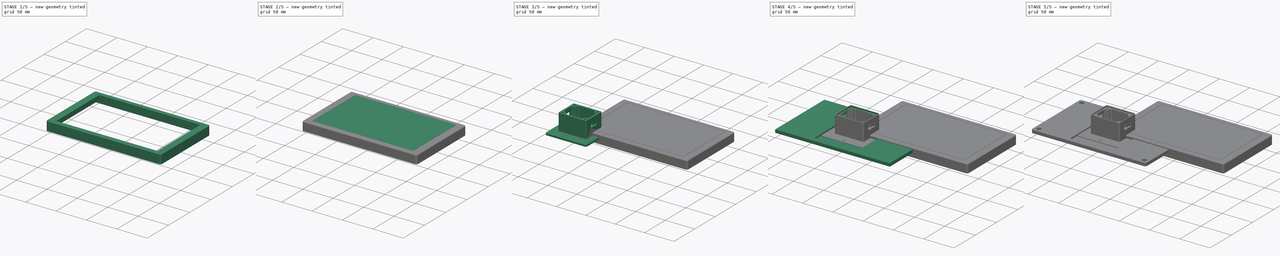
[diagram: build sequence overview — one tinted view per stage of 5, left to right]
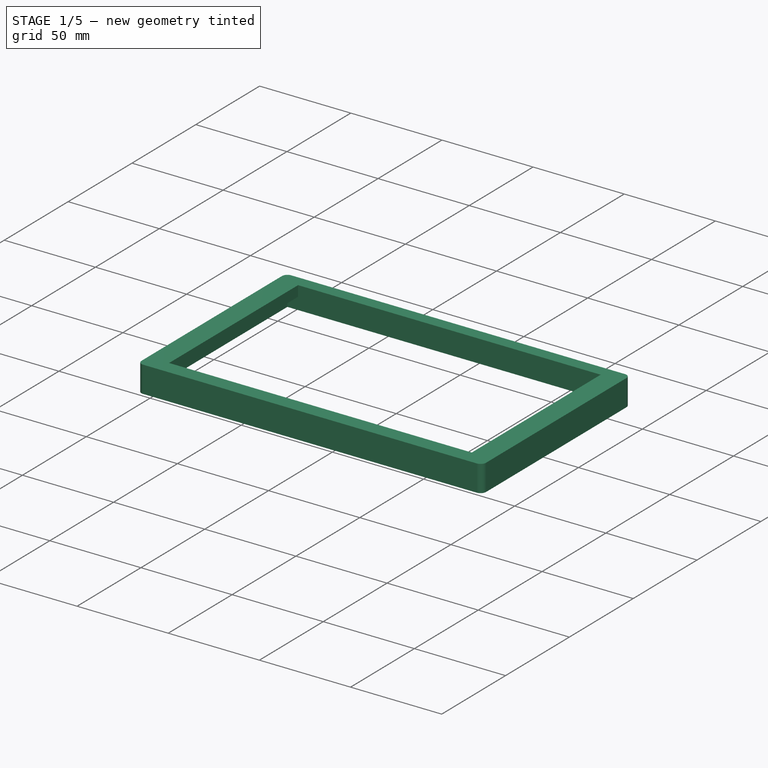
[diagram: stage 1 of 5 — iso view after this stage's code; geometry added in this stage tinted green]
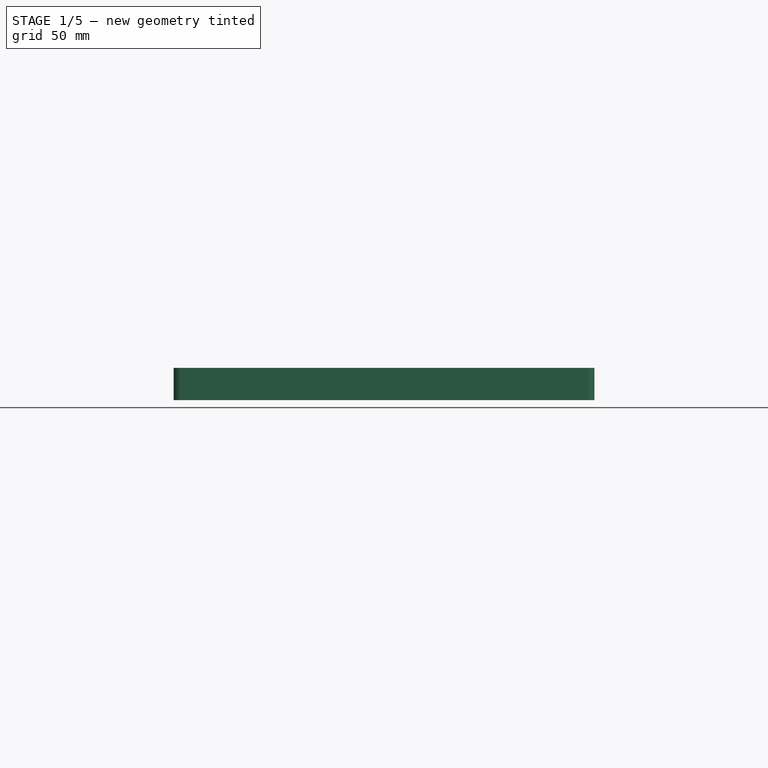
[diagram: stage 1 of 5 — front view after this stage's code; geometry added in this stage tinted green]
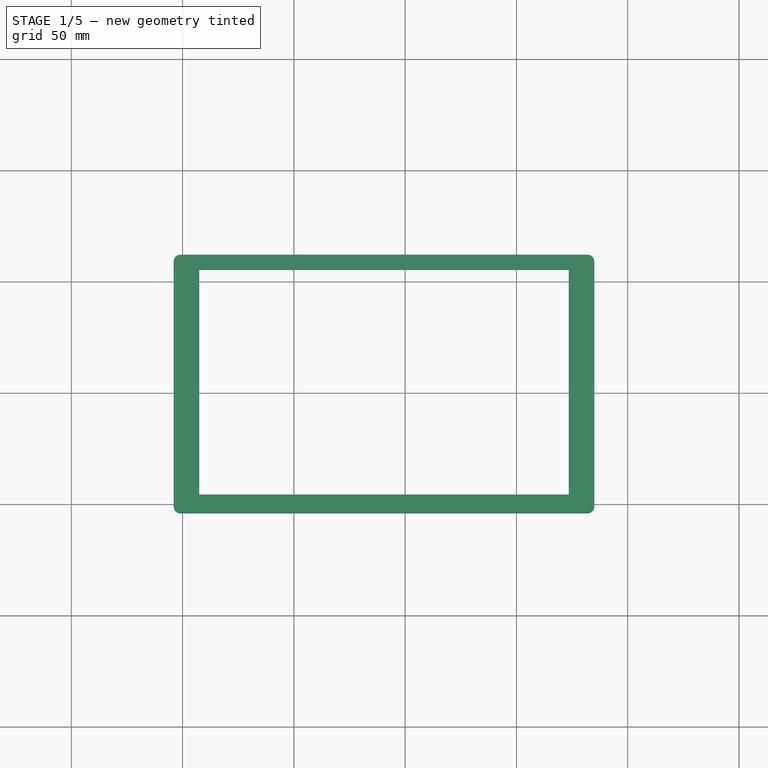
[diagram: stage 1 of 5 — top view after this stage's code; geometry added in this stage tinted green]
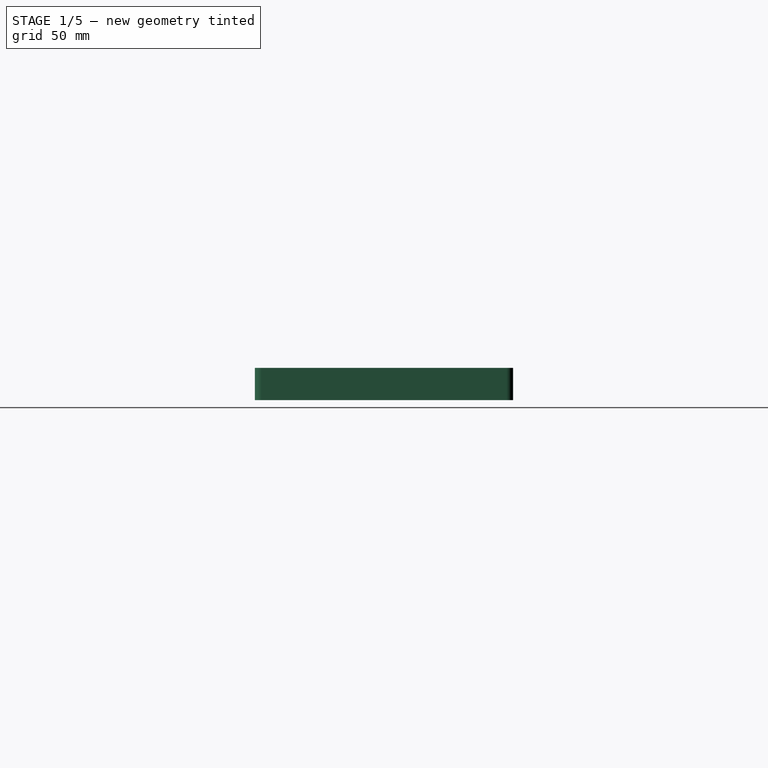
[diagram: stage 1 of 5 — right view after this stage's code; geometry added in this stage tinted green]
FCSTD DOCUMENT  (FreeCAD 1.0RUnknown)
Label: cyd-wallmount
License: All rights reserved
LicenseURL: http://en.wikipedia.org/wiki/All_rights_reserved
objects: Sketcher::SketchObject×29, PartDesign::Pad×15, PartDesign::Pocket×14, PartDesign::Body×5, PartDesign::Fillet×4, Part::Part2DObjectPython×2, PartDesign::Hole×2, Spreadsheet::Sheet×1
note: 170 computed .brp shape members not serialized (recipe doc carries the construction recipe); baked Part::Feature solids carry a one-line shape summary decoded from their .brp

FEATURE [Sketcher::SketchObject] Sketch020
  ArcFitTolerance = 0
  AttachmentSupport = -> [YZ_Plane001]
  FullyConstrained = true
  MakeInternals = false
  MapMode = 5
  Placement = pos=(0,0,0) rot=(0.57735,0.57735,0.57735;2.0944rad)
  sketch-geometry (10):
    g0: ArcOfCircle CenterX=59.5 CenterY=-1.625 CenterZ=0 NormalX=0 NormalY=0 NormalZ=1 AngleXU=0 Radius=3.25 StartAngle=4.71239 EndAngle=7.85398
    g1: ArcOfCircle CenterX=49 CenterY=-1.625 CenterZ=0 NormalX=0 NormalY=0 NormalZ=1 AngleXU=0 Radius=3.25 StartAngle=1.5708 EndAngle=4.71239
    g2: LineSegment StartX=59.5 StartY=1.625 StartZ=0 EndX=49 EndY=1.625 EndZ=0
    g3: LineSegment StartX=49 StartY=-4.875 StartZ=0 EndX=59.5 EndY=-4.875 EndZ=0
    g4: LineSegment [constr] StartX=49.75 StartY=0 StartZ=0 EndX=58.75 EndY=1.9e-15 EndZ=0
    g5: LineSegment [constr] StartX=58.75 StartY=1.9e-15 StartZ=0 EndX=58.75 EndY=-3.25 EndZ=0
    g6: LineSegment [constr] StartX=58.75 StartY=-3.25 StartZ=0 EndX=49.75 EndY=-3.25 EndZ=0
    g7: LineSegment [constr] StartX=49.75 StartY=-3.25 StartZ=0 EndX=49.75 EndY=0 EndZ=0
    g8: LineSegment [constr] StartX=45.75 StartY=-1.625 StartZ=0 EndX=62.75 EndY=-1.625 EndZ=0
    g9: GeomPoint [constr] X=54.25 Y=-1.625 Z=0
  constraints (25):
    c: Tangent(g0,g2) = -1.5708
    c: Tangent(g2,g1) = -1.5708
    c: Tangent(g1,g3) = -1.5708
    c: Tangent(g3,g0) = -1.5708
    c: Horizontal(g2)
    c: DistanceY(g7,g7) = 3.25
    c: DistanceX(g-1,g4) = 49.75
    c: PointOnObject(g4,g-1)
    c: PointOnObject(g1,g8)
    c: Horizontal(g8)
    c: PointOnObject(g0,g8)
    c: PointOnObject(g8,g1)
    c: PointOnObject(g8,g0)
    c: Symmetric(g8,g8,g9)
    c: Symmetric(g4,g5,g9)
    c: Vertical(g5)
    c: Horizontal(g6)
    c: Coincident(g4,g5)
    c: Coincident(g5,g6)
    c: Coincident(g6,g7)
    c: Coincident(g4,g7)
    c: Symmetric(g4,g6,g9)
    c: DistanceY(g1,g1) = 6.5
    c: DistanceX(g8,g8) = 17
    c: DistanceX(g4,g4) = 9
FEATURE [Spreadsheet::Sheet] Spreadsheet  label="Dimensions"
  cells = A2='PCB Width; B2(pcb_width)==181 mm; A3='PCB Height; B3(pcb_height)==108 mm; A4='Thickness; B4(case_thickness)==3 mm; A5='Spacing; B5(case_spacing)==1 mm; A6='Screen Width; B6(screen_width)==165 mm; A7='Screen Height; B7(screen_height)==100 mm; A8='Screen offset left; B8(screen_left)==8 mm; A9='Screen offset bottom; B9(screen_bottom)==4.7 mm; A10='Screen spacing; B10(screen_spacing)==0.5 mm; A11='PCB Thickness; B11(pcb_thickness)==1.75 mm; A12='Screen Height; B12(screen_thickness)==5.75 mm; A13='Keep-away; B13(keepaway)==6 mm; A14='Mounting Hole; B14(mount_hole)==4.3 mm; A15='PCB Corner to Hole; B15(hole_offset)==3.5 mm; A16='Hole Depth; B16(hole_depth)==4 mm; A18='Faceplate converter hole roundness; B18(faceplate_rounder)==2.9 mm
FEATURE [Sketcher::SketchObject] Sketch021
  ArcFitTolerance = 0
  AttachmentOffset = pos=(0,0,1.75) rot=(0,0,1;0rad)
  AttachmentSupport = -> [XY_Plane001]
  FullyConstrained = true
  MakeInternals = false
  MapMode = 5
  Placement = pos=(0,0,1.75) rot=(0,0,1;0rad)
  expr: .AttachmentOffset.Base.z = <<Dimensions>>.pcb_thickness
  expr: Constraints[10] = <<Dimensions>>.hole_offset
  expr: Constraints[11] = <<Dimensions>>.pcb_width - <<Dimensions>>.hole_offset
  expr: Constraints[3] = <<Dimensions>>.mount_hole
  expr: Constraints[4] = <<Dimensions>>.hole_offset
  expr: Constraints[5] = <<Dimensions>>.hole_offset
  expr: Constraints[6] = <<Dimensions>>.hole_offset
  expr: Constraints[7] = <<Dimensions>>.pcb_height - <<Dimensions>>.hole_offset
  expr: Constraints[8] = <<Dimensions>>.pcb_height - <<Dimensions>>.hole_offset
  expr: Constraints[9] = <<Dimensions>>.pcb_width - <<Dimensions>>.hole_offset
  sketch-geometry (4):
    g0: Circle CenterX=3.5 CenterY=3.5 CenterZ=0 NormalX=0 NormalY=0 NormalZ=1 AngleXU=0 Radius=2.15
    g1: Circle CenterX=177.5 CenterY=3.5 CenterZ=0 NormalX=0 NormalY=0 NormalZ=1 AngleXU=0 Radius=2.15
    g2: Circle CenterX=177.5 CenterY=104.5 CenterZ=0 NormalX=0 NormalY=0 NormalZ=1 AngleXU=0 Radius=2.15
    g3: Circle CenterX=3.5 CenterY=104.5 CenterZ=0 NormalX=0 NormalY=0 NormalZ=1 AngleXU=0 Radius=2.15
  constraints (12):
    c: Equal(g3,g0)
    c: Equal(g0,g1)
    c: Equal(g1,g2)
    c: Diameter(g3) = 4.3
    c: DistanceX(g-1,g0) = 3.5
    c: DistanceY(g-1,g0) = 3.5
    c: DistanceX(g-1,g3) = 3.5
    c: DistanceY(g-1,g3) = 104.5
    c: DistanceY(g-1,g2) = 104.5
    c: DistanceX(g-1,g2) = 177.5
    c: DistanceY(g-1,g1) = 3.5
    c: DistanceX(g-1,g1) = 177.5
FEATURE [Sketcher::SketchObject] Sketch022
  ArcFitTolerance = 0
  AttachmentSupport = -> [XY_Plane001]
  FullyConstrained = true
  MakeInternals = false
  MapMode = 5
  expr: Constraints[10] = <<Dimensions>>.screen_width + <<Dimensions>>.screen_spacing * 2
  expr: Constraints[11] = <<Dimensions>>.screen_height + <<Dimensions>>.screen_spacing * 2
  expr: Constraints[8] = <<Dimensions>>.screen_left - <<Dimensions>>.screen_spacing
  expr: Constraints[9] = <<Dimensions>>.screen_bottom - <<Dimensions>>.screen_spacing
  sketch-geometry (4):
    g0: LineSegment StartX=7.5 StartY=4.2 StartZ=0 EndX=173.5 EndY=4.2 EndZ=0
    g1: LineSegment StartX=173.5 StartY=4.2 StartZ=0 EndX=173.5 EndY=105.2 EndZ=0
    g2: LineSegment StartX=173.5 StartY=105.2 StartZ=0 EndX=7.5 EndY=105.2 EndZ=0
    g3: LineSegment StartX=7.5 StartY=105.2 StartZ=0 EndX=7.5 EndY=4.2 EndZ=0
  constraints (12):
    c: Coincident(g0,g1)
    c: Coincident(g1,g2)
    c: Coincident(g2,g3)
    c: Coincident(g3,g0)
    c: Horizontal(g0)
    c: Horizontal(g2)
    c: Vertical(g1)
    c: Vertical(g3)
    c: DistanceX(g-1,g0) = 7.5
    c: DistanceY(g-1,g0) = 4.2
    c: DistanceX(g0,g0) = 166
    c: DistanceY(g3,g3) = 101
FEATURE [Sketcher::SketchObject] Sketch023
  ArcFitTolerance = 0
  AttachmentOffset = pos=(0,0,1.75) rot=(0,0,1;0rad)
  AttachmentSupport = -> [XY_Plane001]
  FullyConstrained = true
  MakeInternals = false
  MapMode = 5
  Placement = pos=(0,0,1.75) rot=(0,0,1;0rad)
  expr: .AttachmentOffset.Base.z = <<Dimensions>>.pcb_thickness
  expr: Constraints[10] = <<Dimensions>>.pcb_height + 2 * <<Dimensions>>.case_spacing
  expr: Constraints[11] = <<Dimensions>>.case_spacing * 2 + <<Dimensions>>.pcb_width
  expr: Constraints[8] = <<Dimensions>>.case_spacing
  expr: Constraints[9] = <<Dimensions>>.case_spacing
  sketch-geometry (4):
    g0: LineSegment StartX=-1 StartY=-1 StartZ=0 EndX=182 EndY=-1 EndZ=0
    g1: LineSegment StartX=182 StartY=-1 StartZ=0 EndX=182 EndY=109 EndZ=0
    g2: LineSegment StartX=182 StartY=109 StartZ=0 EndX=-1 EndY=109 EndZ=0
    g3: LineSegment StartX=-1 StartY=109 StartZ=0 EndX=-1 EndY=-1 EndZ=0
  constraints (12):
    c: Coincident(g0,g1)
    c: Coincident(g1,g2)
    c: Coincident(g2,g3)
    c: Coincident(g3,g0)
    c: Horizontal(g0)
    c: Horizontal(g2)
    c: Vertical(g1)
    c: Vertical(g3)
    c: DistanceY(g0,g-1) = 1
    c: DistanceX(g0,g-1) = 1
    c: DistanceY(g3,g3) = 110
    c: DistanceX(g0,g0) = 183
FEATURE [Sketcher::SketchObject] Sketch024
  ArcFitTolerance = 0
  AttachmentSupport = -> [XY_Plane001]
  FullyConstrained = true
  MakeInternals = false
  MapMode = 5
  expr: Constraints[10] = <<Dimensions>>.pcb_height + 2 * <<Dimensions>>.case_spacing + 2 * <<Dimensions>>.case_thickness
  expr: Constraints[11] = <<Dimensions>>.pcb_width + 2 * <<Dimensions>>.case_spacing + 2 * <<Dimensions>>.case_thickness
  expr: Constraints[8] = <<Dimensions>>.case_spacing + <<Dimensions>>.case_thickness
  expr: Constraints[9] = <<Dimensions>>.case_spacing + <<Dimensions>>.case_thickness
  sketch-geometry (4):
    g0: LineSegment StartX=-4 StartY=-4 StartZ=0 EndX=185 EndY=-4 EndZ=0
    g1: LineSegment StartX=185 StartY=-4 StartZ=0 EndX=185 EndY=112 EndZ=0
    g2: LineSegment StartX=185 StartY=112 StartZ=0 EndX=-4 EndY=112 EndZ=0
    g3: LineSegment StartX=-4 StartY=112 StartZ=0 EndX=-4 EndY=-4 EndZ=0
  constraints (12):
    c: Coincident(g0,g1)
    c: Coincident(g1,g2)
    c: Coincident(g2,g3)
    c: Coincident(g3,g0)
    c: Horizontal(g0)
    c: Horizontal(g2)
    c: Vertical(g1)
    c: Vertical(g3)
    c: DistanceX(g0,g-1) = 4
    c: DistanceY(g0,g-1) = 4
    c: DistanceY(g3,g3) = 116
    c: DistanceX(g0,g0) = 189
FEATURE [PartDesign::Pad] Pad008  label="Outer Case"
  Direction = (0,0,1)
  Length = 7.5
  Length2 = 7
  Profile = -> Sketch024
  ReferenceAxis = -> Sketch024 [N_Axis]
  Suppressed = false
  Type = 4
  expr: Length = <<Dimensions>>.pcb_thickness + <<Dimensions>>.screen_thickness
  expr: Length2 = <<Dimensions>>.keepaway + 1 mm
FEATURE [PartDesign::Pocket] Pocket013  label="Back Side"
  BaseFeature = -> Pad008
  Direction = (0,0,-1)
  Length = 10.75
  Length2 = 5
  Profile = -> Sketch023
  ReferenceAxis = -> Sketch023 [N_Axis]
  Suppressed = false
  Type = 0
  expr: Length = <<Dimensions>>.pcb_thickness + <<Dimensions>>.keepaway + <<Dimensions>>.case_thickness
FEATURE [PartDesign::Pocket] Pocket014  label="Screen Cut-out"
  BaseFeature = -> Pocket013
  Direction = (0,0,-1)
  Length = 7.5
  Length2 = 5
  Profile = -> Sketch022
  ReferenceAxis = -> Sketch022 [N_Axis]
  Reversed = true
  Suppressed = false
  Type = 0
  expr: Length = <<Dimensions>>.pcb_thickness + <<Dimensions>>.screen_thickness
FEATURE [PartDesign::Pocket] Pocket015  label="PCB Mounting Holes"
  BaseFeature = -> Pocket014
  Direction = (0,0,-1)
  Length = 5
  Length2 = 5
  Profile = -> Sketch021
  ReferenceAxis = -> Sketch021 [N_Axis]
  Reversed = true
  Suppressed = false
  Type = 0
FEATURE [PartDesign::Pocket] Pocket003
  BaseFeature = -> Pocket015
  Direction = (-1,0,0)
  Length = 12
  Length2 = 5
  Profile = -> Sketch020
  ReferenceAxis = -> Sketch020 [N_Axis]
  Suppressed = false
  Type = 0
FEATURE [Sketcher::SketchObject] Sketch025
  ArcFitTolerance = 1e-06
  AttachmentSupport = -> [Pocket003]
  FullyConstrained = false
  MakeInternals = false
  MapMode = 5
  Placement = pos=(0,0,1.75) rot=(1,0,0;3.14159rad)
  sketch-geometry (4):
    g0: LineSegment StartX=139.543 StartY=0.730022 StartZ=0 EndX=139.543 EndY=-4.26998 EndZ=0
    g1: LineSegment StartX=139.543 StartY=-4.26998 StartZ=0 EndX=164.543 EndY=-4.26998 EndZ=0
    g2: LineSegment StartX=164.543 StartY=-4.26998 StartZ=0 EndX=164.543 EndY=0.730022 EndZ=0
    g3: LineSegment StartX=164.543 StartY=0.730022 StartZ=0 EndX=139.543 EndY=0.730022 EndZ=0
  constraints (10):
    c: Coincident(g0,g1)
    c: Coincident(g1,g2)
    c: Coincident(g2,g3)
    c: Coincident(g3,g0)
    c: Vertical(g0)
    c: Vertical(g2)
    c: Horizontal(g1)
    c: Horizontal(g3)
    c: Distance(g0,g2) = 25
    c: Distance(g1,g3) = 5
FEATURE [PartDesign::Pocket] Pocket017
  BaseFeature = -> Pocket003
  Direction = (0,0,1)
  Length = 3.5
  Length2 = 5
  Profile = -> Sketch025
  ReferenceAxis = -> Sketch025 [N_Axis]
  Refine = true
  Suppressed = false
  Type = 0
FEATURE [PartDesign::Fillet] Fillet002
  Base = -> Pocket017 [Edge1,Edge2,Edge12,Edge5]
  BaseFeature = -> Pocket017
  Radius = 3
  Refine = true
  SupportTransform = false
  Suppressed = false
  UseAllEdges = false
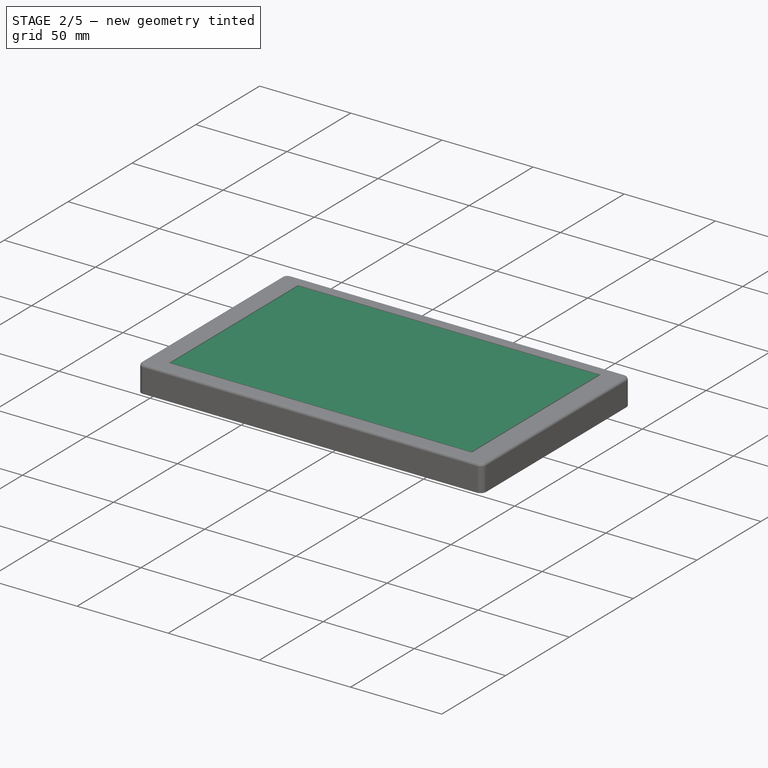
[diagram: stage 2 of 5 — iso view after this stage's code; geometry added in this stage tinted green]
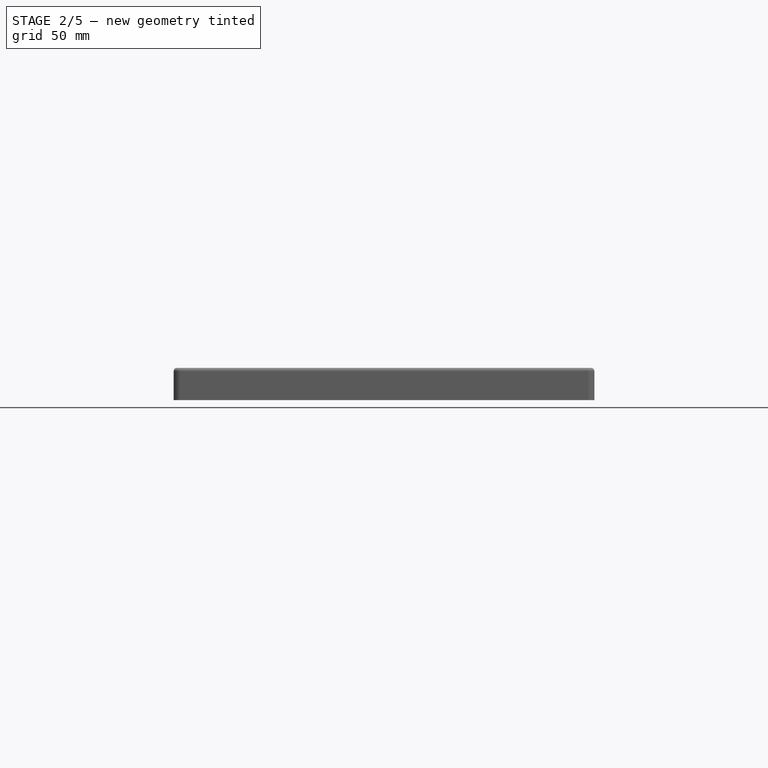
[diagram: stage 2 of 5 — front view after this stage's code; geometry added in this stage tinted green]
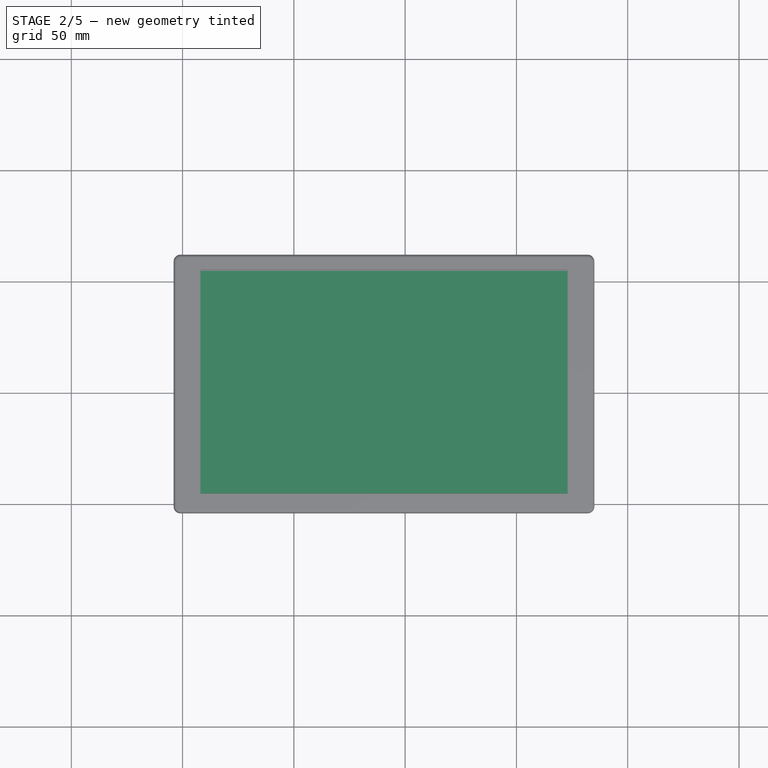
[diagram: stage 2 of 5 — top view after this stage's code; geometry added in this stage tinted green]
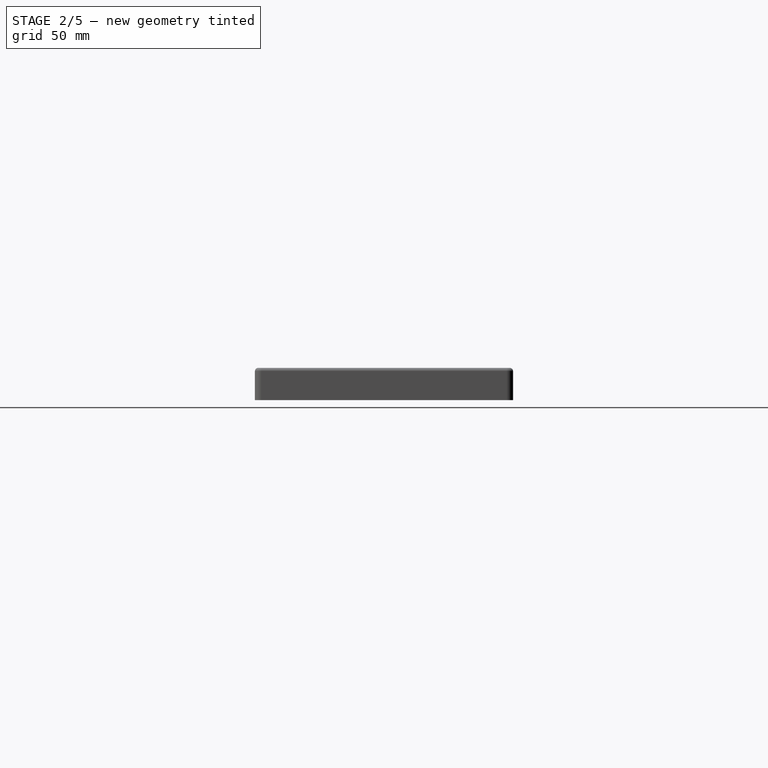
[diagram: stage 2 of 5 — right view after this stage's code; geometry added in this stage tinted green]
FEATURE [PartDesign::Fillet] Fillet003
  Base = -> Fillet002 [Edge20,Edge22,Edge24,Edge23,Edge21,Edge19,Edge4,Edge17]
  BaseFeature = -> Fillet002
  Radius = 1.5
  Refine = true
  SupportTransform = false
  Suppressed = false
  UseAllEdges = false
FEATURE [PartDesign::Body] Body  label="Faceplate"
  AllowCompound = false
  Group = -> [Sketch,Pad,Sketch001,Pad001,Sketch002,Pocket,Sketch003,Pocket001,Sketch018,ShapeString,Pocket016,Sketch026,Pocket018,Hole001]
  Origin = -> Origin
  Tip = -> Hole001
FEATURE [Sketcher::SketchObject] Sketch007
  ArcFitTolerance = 0
  AttachmentSupport = -> [XY_Plane006]
  FullyConstrained = true
  MakeInternals = false
  MapMode = 5
  sketch-geometry (22):
    g0: LineSegment StartX=65 StartY=0 StartZ=0 EndX=65 EndY=50 EndZ=0
    g1: LineSegment StartX=65 StartY=50 StartZ=0 EndX=120 EndY=50 EndZ=0
    g2: LineSegment StartX=120 StartY=50 StartZ=0 EndX=120 EndY=0 EndZ=0
    g3: LineSegment StartX=120 StartY=0 StartZ=0 EndX=65 EndY=0 EndZ=0
    g4: LineSegment StartX=140 StartY=0 StartZ=0 EndX=140 EndY=35 EndZ=0
    g5: LineSegment StartX=140 StartY=35 StartZ=0 EndX=170 EndY=35 EndZ=0
    g6: LineSegment StartX=170 StartY=35 StartZ=0 EndX=170 EndY=0 EndZ=0
    g7: LineSegment StartX=170 StartY=0 StartZ=0 EndX=140 EndY=0 EndZ=0
    g8: LineSegment StartX=181 StartY=45 StartZ=0 EndX=154 EndY=45 EndZ=0
    g9: LineSegment StartX=154 StartY=45 StartZ=0 EndX=154 EndY=63 EndZ=0
    g10: LineSegment StartX=154 StartY=63 StartZ=0 EndX=181 EndY=63 EndZ=0
    g11: LineSegment StartX=181 StartY=63 StartZ=0 EndX=181 EndY=45 EndZ=0
    g12: LineSegment StartX=15 StartY=45 StartZ=0 EndX=15 EndY=90 EndZ=0
    g13: LineSegment StartX=15 StartY=90 StartZ=0 EndX=140 EndY=90 EndZ=0
    g14: LineSegment StartX=140 StartY=90 StartZ=0 EndX=140 EndY=65 EndZ=0
    g15: LineSegment StartX=140 StartY=65 StartZ=0 EndX=50 EndY=65 EndZ=0
    g16: LineSegment StartX=50 StartY=65 StartZ=0 EndX=50 EndY=45 EndZ=0
    g17: LineSegment StartX=50 StartY=45 StartZ=0 EndX=15 EndY=45 EndZ=0
    g18: LineSegment [constr] StartX=0 StartY=0 StartZ=0 EndX=181 EndY=0 EndZ=0
    g19: LineSegment [constr] StartX=181 StartY=0 StartZ=0 EndX=181 EndY=108 EndZ=0
    g20: LineSegment [constr] StartX=181 StartY=108 StartZ=0 EndX=0 EndY=108 EndZ=0
    g21: LineSegment [constr] StartX=0 StartY=108 StartZ=0 EndX=0 EndY=0 EndZ=0
  constraints (65):
    c: Coincident(g0,g1)
    c: Horizontal(g1)
    c: Coincident(g1,g2)
    c: Coincident(g2,g3)
    c: Coincident(g3,g0)
    c: Horizontal(g3)
    c: PointOnObject(g4,g-1)
    c: Coincident(g4,g5)
    c: Horizontal(g5)
    c: Coincident(g5,g6)
    c: Coincident(g6,g7)
    c: Coincident(g7,g4)
    c: Horizontal(g7)
    c: Horizontal(g8)
    c: Coincident(g8,g9)
    c: Vertical(g9)
    c: Coincident(g9,g10)
    c: Horizontal(g10)
    c: Coincident(g10,g11)
    c: Coincident(g11,g8)
    c: Vertical(g11)
    c: Vertical(g12)
    c: Coincident(g12,g13)
    c: Horizontal(g13)
    c: Coincident(g13,g14)
    c: Vertical(g14)
    c: Coincident(g14,g15)
    c: Horizontal(g15)
    c: Coincident(g15,g16)
    c: Coincident(g16,g17)
    c: Coincident(g12,g17)
    c: Horizontal(g17)
    c: Vertical(g0)
    c: Vertical(g16)
    c: Vertical(g4)
    c: Vertical(g2)
    c: Vertical(g6)
    c: DistanceX(g8,g8) = 27
    c: DistanceY(g9,g9) = 18
    c: Coincident(g18,g19)
    c: Coincident(g19,g20)
    c: Coincident(g20,g21)
    c: Coincident(g21,g18)
    c: Horizontal(g18)
    c: Horizontal(g20)
    c: Vertical(g19)
    c: Vertical(g21)
    c: Coincident(g18,g-1)
    c: DistanceY(g19,g19) = 108
    c: DistanceX(g20,g20) = 181
    c: PointOnObject(g8,g19)
    c: PointOnObject(g0,g18)
    c: DistanceX(g7,g7) = 30
    c: DistanceY(g6,g6) = 35
    c: DistanceX(g18,g4) = 140
    c: DistanceX(g18,g0) = 65
    c: DistanceX(g3,g3) = 55
    c: DistanceY(g0,g0) = 50
    c: DistanceY(g18,g8) = 45
    c: DistanceY(g14,g14) = 25
    c: DistanceX(g13,g13) = 125
    c: DistanceY(g12,g12) = 45
    c: DistanceX(g17,g17) = 35
    c: DistanceX(g18,g12) = 15
    c: DistanceY(g18,g12) = 45
FEATURE [Sketcher::SketchObject] Sketch032
  ArcFitTolerance = 0
  AttachmentSupport = -> [XY_Plane006]
  FullyConstrained = true
  MakeInternals = false
  MapMode = 5
  sketch-geometry (8):
    g0: LineSegment StartX=162 StartY=90 StartZ=0 EndX=165.5 EndY=90 EndZ=0
    g1: LineSegment StartX=165.5 StartY=90 StartZ=0 EndX=165.5 EndY=96.5 EndZ=0
    g2: LineSegment StartX=165.5 StartY=96.5 StartZ=0 EndX=162 EndY=96.5 EndZ=0
    g3: LineSegment StartX=162 StartY=96.5 StartZ=0 EndX=162 EndY=90 EndZ=0
    g4: LineSegment StartX=168 StartY=90 StartZ=0 EndX=171.5 EndY=90 EndZ=0
    g5: LineSegment StartX=171.5 StartY=90 StartZ=0 EndX=171.5 EndY=96.5 EndZ=0
    g6: LineSegment StartX=171.5 StartY=96.5 StartZ=0 EndX=168 EndY=96.5 EndZ=0
    g7: LineSegment StartX=168 StartY=96.5 StartZ=0 EndX=168 EndY=90 EndZ=0
  constraints (24):
    c: Coincident(g0,g1)
    c: Coincident(g1,g2)
    c: Coincident(g2,g3)
    c: Coincident(g3,g0)
    c: Horizontal(g0)
    c: Horizontal(g2)
    c: Vertical(g1)
    c: Vertical(g3)
    c: Coincident(g4,g5)
    c: Coincident(g5,g6)
    c: Coincident(g6,g7)
    c: Coincident(g7,g4)
    c: Horizontal(g4)
    c: Horizontal(g6)
    c: Vertical(g5)
    c: Vertical(g7)
    c: Equal(g2,g6)
    c: Equal(g1,g5)
    c: DistanceX(g0,g0) = 3.5
    c: DistanceY(g3,g3) = 6.5
    c: DistanceX(g0,g4) = 9.5
    c: DistanceX(g-1,g4) = 171.5
    c: DistanceY(g-1,g2) = 96.5
    c: DistanceY(g0,g4) = 0
FEATURE [Sketcher::SketchObject] Sketch033
  ArcFitTolerance = 0
  AttachmentSupport = -> [XY_Plane006]
  FullyConstrained = true
  MakeInternals = false
  MapMode = 5
  sketch-geometry (4):
    g0: LineSegment StartX=123 StartY=93 StartZ=0 EndX=138 EndY=93 EndZ=0
    g1: LineSegment StartX=138 StartY=93 StartZ=0 EndX=138 EndY=108 EndZ=0
    g2: LineSegment StartX=138 StartY=108 StartZ=0 EndX=123 EndY=108 EndZ=0
    g3: LineSegment StartX=123 StartY=108 StartZ=0 EndX=123 EndY=93 EndZ=0
  constraints (12):
    c: Coincident(g0,g1)
    c: Coincident(g1,g2)
    c: Coincident(g2,g3)
    c: Coincident(g3,g0)
    c: Horizontal(g0)
    c: Horizontal(g2)
    c: Vertical(g1)
    c: Vertical(g3)
    c: DistanceX(g0,g0) = 15
    c: DistanceY(g3,g3) = 15
    c: DistanceY(g-1,g2) = 108
    c: DistanceX(g-1,g0) = 138
FEATURE [Sketcher::SketchObject] Sketch034
  ArcFitTolerance = 0
  AttachmentSupport = -> [XY_Plane006]
  FullyConstrained = true
  MakeInternals = false
  MapMode = 5
  sketch-geometry (21):
    g0: LineSegment StartX=26 StartY=104.5 StartZ=0 EndX=33.5 EndY=104.5 EndZ=0
    g1: LineSegment StartX=33.5 StartY=104.5 StartZ=0 EndX=33.5 EndY=108 EndZ=0
    g2: LineSegment StartX=33.5 StartY=108 StartZ=0 EndX=26 EndY=108 EndZ=0
    g3: LineSegment StartX=26 StartY=108 StartZ=0 EndX=26 EndY=104.5 EndZ=0
    g4: LineSegment StartX=41.7 StartY=103.5 StartZ=0 EndX=47.7 EndY=103.5 EndZ=0
    g5: LineSegment StartX=47.7 StartY=103.5 StartZ=0 EndX=47.7 EndY=108 EndZ=0
    g6: LineSegment StartX=47.7 StartY=108 StartZ=0 EndX=41.7 EndY=108 EndZ=0
    g7: LineSegment StartX=41.7 StartY=108 StartZ=0 EndX=41.7 EndY=103.5 EndZ=0
    g8: LineSegment StartX=57.7 StartY=103 StartZ=0 EndX=64.7 EndY=103 EndZ=0
    g9: LineSegment StartX=64.7 StartY=103 StartZ=0 EndX=64.7 EndY=108 EndZ=0
    g10: LineSegment StartX=64.7 StartY=108 StartZ=0 EndX=57.7 EndY=108 EndZ=0
    g11: LineSegment StartX=57.7 StartY=108 StartZ=0 EndX=57.7 EndY=103 EndZ=0
    g12: LineSegment StartX=77.7 StartY=103 StartZ=0 EndX=84.7 EndY=103 EndZ=0
    g13: LineSegment StartX=84.7 StartY=103 StartZ=0 EndX=84.7 EndY=108 EndZ=0
    g14: LineSegment StartX=84.7 StartY=108 StartZ=0 EndX=77.7 EndY=108 EndZ=0
    g15: LineSegment StartX=77.7 StartY=108 StartZ=0 EndX=77.7 EndY=103 EndZ=0
    g16: LineSegment StartX=97.7 StartY=103 StartZ=0 EndX=104.7 EndY=103 EndZ=0
    g17: LineSegment StartX=104.7 StartY=103 StartZ=0 EndX=104.7 EndY=108 EndZ=0
    g18: LineSegment StartX=104.7 StartY=108 StartZ=0 EndX=97.7 EndY=108 EndZ=0
    g19: LineSegment StartX=97.7 StartY=108 StartZ=0 EndX=97.7 EndY=103 EndZ=0
    g20: LineSegment [constr] StartX=0 StartY=108 StartZ=0 EndX=181 EndY=108 EndZ=0
  constraints (64):
    c: Coincident(g0,g1)
    c: Coincident(g1,g2)
    c: Coincident(g2,g3)
    c: Coincident(g3,g0)
    c: Horizontal(g0)
    c: Horizontal(g2)
    c: Vertical(g1)
    c: Vertical(g3)
    c: Coincident(g4,g5)
    c: Coincident(g5,g6)
    c: Coincident(g6,g7)
    c: Coincident(g7,g4)
    c: Horizontal(g4)
    c: Horizontal(g6)
    c: Vertical(g5)
    c: Vertical(g7)
    c: Coincident(g8,g9)
    c: Coincident(g9,g10)
    c: Coincident(g10,g11)
    c: Coincident(g11,g8)
    c: Horizontal(g8)
    c: Horizontal(g10)
    c: Vertical(g9)
    c: Vertical(g11)
    c: Coincident(g12,g13)
    c: Coincident(g13,g14)
    c: Coincident(g14,g15)
    c: Coincident(g15,g12)
    c: Horizontal(g12)
    c: Horizontal(g14)
    c: Vertical(g13)
    c: Vertical(g15)
    c: Coincident(g16,g17)
    c: Coincident(g17,g18)
    c: Coincident(g18,g19)
    c: Coincident(g19,g16)
    c: Horizontal(g16)
    c: Horizontal(g18)
    c: Vertical(g17)
    c: Vertical(g19)
    c: DistanceX(g0,g0) = 7.5
    c: DistanceY(g1,g1) = 3.5
    c: DistanceX(g4,g4) = 6
    c: DistanceY(g7,g7) = 4.5
    c: DistanceX(g8,g8) = 7
    c: DistanceY(g11,g11) = 5
    c: Equal(g12,g16)
    c: Equal(g16,g8)
    c: Equal(g9,g13)
    c: Equal(g13,g17)
    c: PointOnObject(g20,g-2)
    c: Horizontal(g20)
    c: DistanceY(g-1,g20) = 108
    c: DistanceX(g20,g20) = 181
    c: PointOnObject(g1,g20)
    c: PointOnObject(g5,g20)
    c: PointOnObject(g9,g20)
    c: PointOnObject(g13,g20)
    c: PointOnObject(g17,g20)
    c: DistanceX(g20,g2) = 26
    c: DistanceX(g1,g6) = 8.2
    c: DistanceX(g5,g10) = 10
    c: DistanceX(g9,g14) = 13
    c: DistanceX(g13,g18) = 13
FEATURE [Sketcher::SketchObject] Sketch035
  ArcFitTolerance = 0
  AttachmentSupport = -> [YZ_Plane006]
  FullyConstrained = true
  MakeInternals = false
  MapMode = 5
  Placement = pos=(0,0,0) rot=(0.57735,0.57735,0.57735;2.0944rad)
  sketch-geometry (4):
    g0: LineSegment StartX=73.4 StartY=0 StartZ=0 EndX=65.9 EndY=0 EndZ=0
    g1: LineSegment StartX=65.9 StartY=0 StartZ=0 EndX=65.9 EndY=-3.25 EndZ=0
    g2: LineSegment StartX=65.9 StartY=-3.25 StartZ=0 EndX=73.4 EndY=-3.25 EndZ=0
    g3: LineSegment StartX=73.4 StartY=-3.25 StartZ=0 EndX=73.4 EndY=0 EndZ=0
  constraints (12):
    c: Coincident(g0,g1)
    c: Coincident(g1,g2)
    c: Coincident(g2,g3)
    c: Coincident(g3,g0)
    c: Horizontal(g0)
    c: Horizontal(g2)
    c: Vertical(g1)
    c: Vertical(g3)
    c: PointOnObject(g0,g-1)
    c: DistanceY(g1,g1) = 3.25
    c: DistanceX(g2,g2) = 7.5
    c: DistanceX(g-1,g2) = 73.4
FEATURE [Sketcher::SketchObject] Sketch036
  ArcFitTolerance = 0
  AttachmentSupport = -> [YZ_Plane006]
  FullyConstrained = true
  MakeInternals = false
  MapMode = 5
  Placement = pos=(0,0,0) rot=(0.57735,0.57735,0.57735;2.0944rad)
  sketch-geometry (4):
    g0: LineSegment StartX=58.75 StartY=0 StartZ=0 EndX=49.75 EndY=0 EndZ=0
    g1: LineSegment StartX=49.75 StartY=0 StartZ=0 EndX=49.75 EndY=-3.25 EndZ=0
    g2: LineSegment StartX=49.75 StartY=-3.25 StartZ=0 EndX=58.75 EndY=-3.25 EndZ=0
    g3: LineSegment StartX=58.75 StartY=-3.25 StartZ=0 EndX=58.75 EndY=0 EndZ=0
  constraints (12):
    c: Coincident(g0,g1)
    c: Coincident(g1,g2)
    c: Coincident(g2,g3)
    c: Coincident(g3,g0)
    c: Horizontal(g0)
    c: Horizontal(g2)
    c: Vertical(g1)
    c: Vertical(g3)
    c: PointOnObject(g0,g-1)
    c: DistanceY(g1,g1) = 3.25
    c: DistanceX(g2,g2) = 9
    c: DistanceX(g-1,g0) = 49.75
FEATURE [Sketcher::SketchObject] Sketch037
  ArcFitTolerance = 0
  AttachmentOffset = pos=(0,0,1.75) rot=(0,0,1;0rad)
  AttachmentSupport = -> [XY_Plane006]
  FullyConstrained = true
  MakeInternals = false
  MapMode = 5
  Placement = pos=(0,0,1.75) rot=(0,0,1;0rad)
  sketch-geometry (4):
    g0: LineSegment StartX=8 StartY=104.7 StartZ=0 EndX=173 EndY=104.7 EndZ=0
    g1: LineSegment StartX=173 StartY=104.7 StartZ=0 EndX=173 EndY=4.7 EndZ=0
    g2: LineSegment StartX=173 StartY=4.7 StartZ=0 EndX=8 EndY=4.7 EndZ=0
    g3: LineSegment StartX=8 StartY=4.7 StartZ=0 EndX=8 EndY=104.7 EndZ=0
  constraints (12):
    c: Coincident(g0,g1)
    c: Coincident(g1,g2)
    c: Coincident(g2,g3)
    c: Coincident(g3,g0)
    c: Horizontal(g0)
    c: Horizontal(g2)
    c: Vertical(g1)
    c: Vertical(g3)
    c: DistanceY(g1,g1) = 100
    c: DistanceX(g0,g0) = 165
    c: DistanceX(g-1,g2) = 8
    c: DistanceY(g-1,g2) = 4.7
FEATURE [Sketcher::SketchObject] Sketch038
  ArcFitTolerance = 0
  AttachmentSupport = -> [XY_Plane006]
  FullyConstrained = true
  MakeInternals = false
  MapMode = 5
  sketch-geometry (14):
    g0: ArcOfCircle CenterX=1.6 CenterY=1.6 CenterZ=0 NormalX=0 NormalY=0 NormalZ=1 AngleXU=0 Radius=1.6 StartAngle=3.14159 EndAngle=4.71239
    g1: LineSegment StartX=0 StartY=1.6 StartZ=0 EndX=0 EndY=106.4 EndZ=0
    g2: ArcOfCircle CenterX=1.6 CenterY=106.4 CenterZ=0 NormalX=0 NormalY=0 NormalZ=1 AngleXU=0 Radius=1.6 StartAngle=1.5708 EndAngle=3.14159
    g3: LineSegment StartX=1.6 StartY=108 StartZ=0 EndX=179.4 EndY=108 EndZ=0
    g4: ArcOfCircle CenterX=179.4 CenterY=106.4 CenterZ=0 NormalX=0 NormalY=0 NormalZ=1 AngleXU=0 Radius=1.6 StartAngle=3.3e-15 EndAngle=1.5708
    g5: LineSegment StartX=181 StartY=106.4 StartZ=0 EndX=181 EndY=1.6 EndZ=0
    g6: ArcOfCircle CenterX=179.4 CenterY=1.6 CenterZ=0 NormalX=0 NormalY=0 NormalZ=1 AngleXU=0 Radius=1.6 StartAngle=4.71239 EndAngle=6.28319
    g7: LineSegment StartX=179.4 StartY=0 StartZ=0 EndX=1.6 EndY=0 EndZ=0
    g8: GeomPoint [constr] X=0 Y=0 Z=0
    g9: GeomPoint [constr] X=181 Y=108 Z=0
    g10: Circle CenterX=3.5 CenterY=104.5 CenterZ=0 NormalX=0 NormalY=0 NormalZ=1 AngleXU=0 Radius=1.6
    g11: Circle CenterX=3.5 CenterY=3.5 CenterZ=0 NormalX=0 NormalY=0 NormalZ=1 AngleXU=0 Radius=1.6
    g12: Circle CenterX=177.5 CenterY=3.5 CenterZ=0 NormalX=0 NormalY=0 NormalZ=1 AngleXU=0 Radius=1.6
    g13: Circle CenterX=177.5 CenterY=104.5 CenterZ=0 NormalX=0 NormalY=0 NormalZ=1 AngleXU=0 Radius=1.6
  constraints (35):
    c: Tangent(g0,g1) = 1.5708
    c: Tangent(g1,g2) = 1.5708
    c: Tangent(g2,g3) = 1.5708
    c: Tangent(g3,g4) = 1.5708
    c: Tangent(g4,g5) = 1.5708
    c: Tangent(g5,g6) = 1.5708
    c: Tangent(g6,g7) = 1.5708
    c: Tangent(g7,g0) = 1.5708
    c: Horizontal(g3)
    c: Horizontal(g7)
    c: Vertical(g1)
    c: Vertical(g5)
    c: Equal(g0,g2)
    c: Equal(g2,g4)
    c: Equal(g4,g6)
    c: PointOnObject(g8,g1)
    c: PointOnObject(g8,g7)
    c: PointOnObject(g9,g3)
    c: PointOnObject(g9,g5)
    c: DistanceY(g0,g2) = 108
    c: DistanceX(g0,g5) = 181
    c: Coincident(g8,g-1)
    c: Radius(g10) = 1.6
    c: DistanceX(g1,g10) = 3.5
    c: DistanceY(g10,g2) = 3.5
    c: Equal(g10,g13)
    c: Equal(g13,g12)
    c: Equal(g12,g11)
    c: DistanceX(g0,g11) = 3.5
    c: DistanceY(g0,g11) = 3.5
    c: DistanceY(g6,g12) = 3.5
    c: DistanceX(g12,g5) = 3.5
    c: Radius(g2) = 1.6
    c: DistanceX(g13,g4) = 3.5
    c: DistanceY(g13,g3) = 3.5
FEATURE [PartDesign::Pad] Pad012  label="PCB"
  Direction = (0,0,1)
  Length = 1.75
  Length2 = 10
  Profile = -> Sketch038
  ReferenceAxis = -> Sketch038 [N_Axis]
  Suppressed = false
  Type = 0
FEATURE [PartDesign::Pad] Pad013  label="Screen"
  BaseFeature = -> Pad012
  Direction = (0,0,1)
  Length = 5.75
  Length2 = 10
  Profile = -> Sketch037
  ReferenceAxis = -> Sketch037 [N_Axis]
  Suppressed = false
  Type = 0
FEATURE [PartDesign::Pad] Pad014  label="USBC"
  BaseFeature = -> Pad013
  Direction = (1,0,0)
  Length = 7.5
  Length2 = 10
  Profile = -> Sketch036
  ReferenceAxis = -> Sketch036 [N_Axis]
  Suppressed = false
  Type = 0
FEATURE [PartDesign::Pad] Pad015  label="UART"
  BaseFeature = -> Pad014
  Direction = (1,0,0)
  Length = 5
  Length2 = 10
  Profile = -> Sketch035
  ReferenceAxis = -> Sketch035 [N_Axis]
  Suppressed = false
  Type = 0
FEATURE [PartDesign::Pad] Pad016  label="Top Ports"
  BaseFeature = -> Pad015
  Direction = (0,0,1)
  Length = 3.25
  Length2 = 10
  Profile = -> Sketch034
  ReferenceAxis = -> Sketch034 [N_Axis]
  Reversed = true
  Suppressed = false
  Type = 0
FEATURE [PartDesign::Body] Body006  label="Device"
  AllowCompound = false
  Group = -> [Sketch038,Pad012,Sketch037,Pad013,Sketch036,Pad014,Sketch035,Pad015,Sketch034,Pad016,Sketch033,Pad017,Sketch032,Pad006,Sketch007,Pad007]
  Origin = -> Origin006
  Placement = pos=(90.5,-54,-9) rot=(0,1,0;3.14159rad)
  Tip = -> Pad007
FEATURE [Sketcher::SketchObject] Sketch039
  ArcFitTolerance = 1e-06
  AttachmentSupport = -> [Fillet003]
  FullyConstrained = false
  MakeInternals = false
  MapMode = 5
  Placement = pos=(-1,0,0) rot=(0.57735,0.57735,0.57735;2.0944rad)
  sketch-geometry (4):
    g0: LineSegment StartX=64.1397 StartY=-7.61274 StartZ=0 EndX=75.1414 EndY=-7.61274 EndZ=0
    g1: LineSegment StartX=75.1414 StartY=-7.61274 StartZ=0 EndX=75.1414 EndY=2.51238 EndZ=0
    g2: LineSegment StartX=75.1414 StartY=2.51238 StartZ=0 EndX=64.1397 EndY=2.51238 EndZ=0
    g3: LineSegment StartX=64.1397 StartY=2.51238 StartZ=0 EndX=64.1397 EndY=-7.61274 EndZ=0
  constraints (8):
    c: Coincident(g0,g1)
    c: Coincident(g1,g2)
    c: Coincident(g2,g3)
    c: Coincident(g3,g0)
    c: Horizontal(g0)
    c: Horizontal(g2)
    c: Vertical(g1)
    c: Vertical(g3)
FEATURE [PartDesign::Pocket] Pocket022
  BaseFeature = -> Fillet003
  Direction = (-1,0,0)
  Length = 2
  Length2 = 5
  Profile = -> Sketch039
  ReferenceAxis = -> Sketch039 [N_Axis]
  Refine = true
  Suppressed = false
  Type = 0
FEATURE [PartDesign::Body] Body003  label="Case Top"
  AllowCompound = false
  Group = -> [Sketch024,Pad008,Sketch023,Pocket013,Sketch022,Pocket014,Sketch021,Pocket015,Sketch020,Pocket003,Sketch025,Pocket017,Fillet002,Fillet003,Sketch039,Pocket022]
  Origin = -> Origin001
  Placement = pos=(90.5,-54,-9) rot=(0,1,0;3.14159rad)
  Tip = -> Pocket022
note: 2 file-system paths scrubbed to <path> (originals preserved in the JSON sidecar)
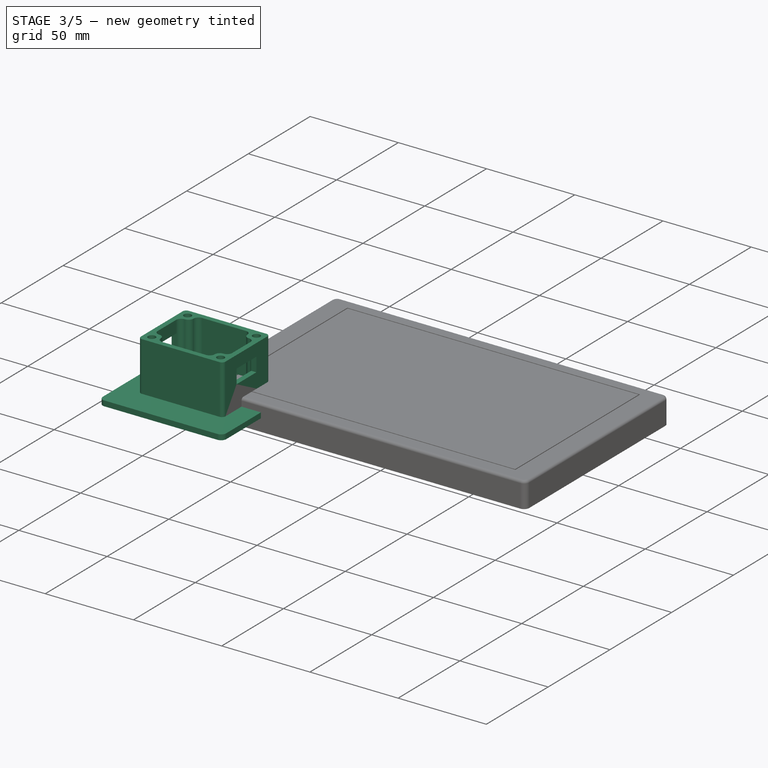
[diagram: stage 3 of 5 — iso view after this stage's code; geometry added in this stage tinted green]
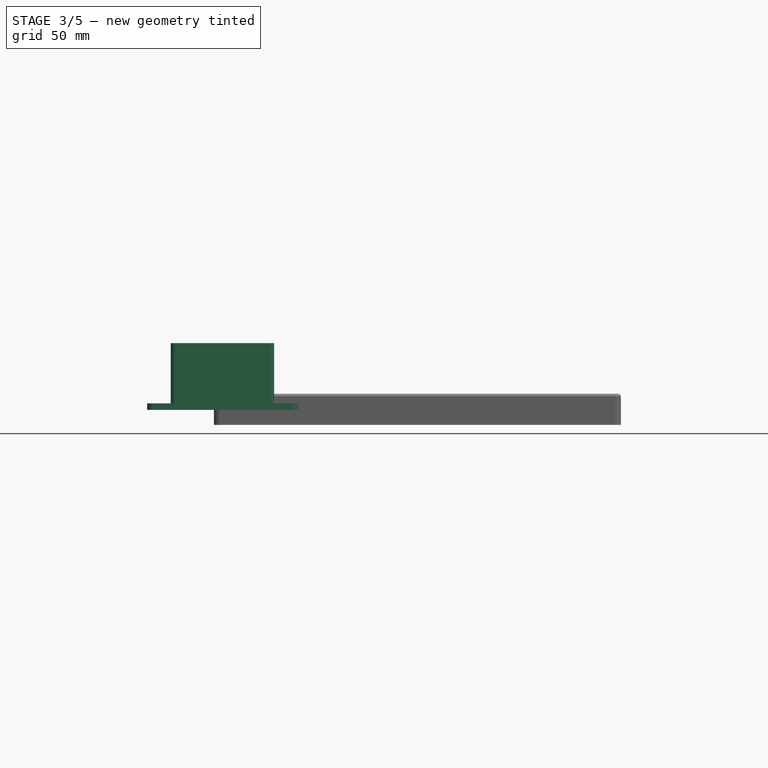
[diagram: stage 3 of 5 — front view after this stage's code; geometry added in this stage tinted green]
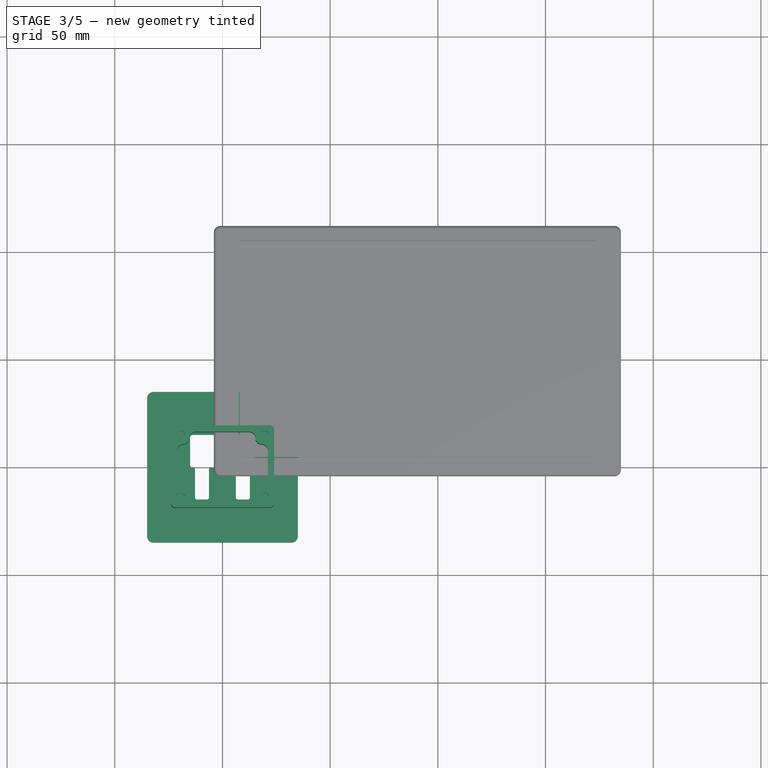
[diagram: stage 3 of 5 — top view after this stage's code; geometry added in this stage tinted green]
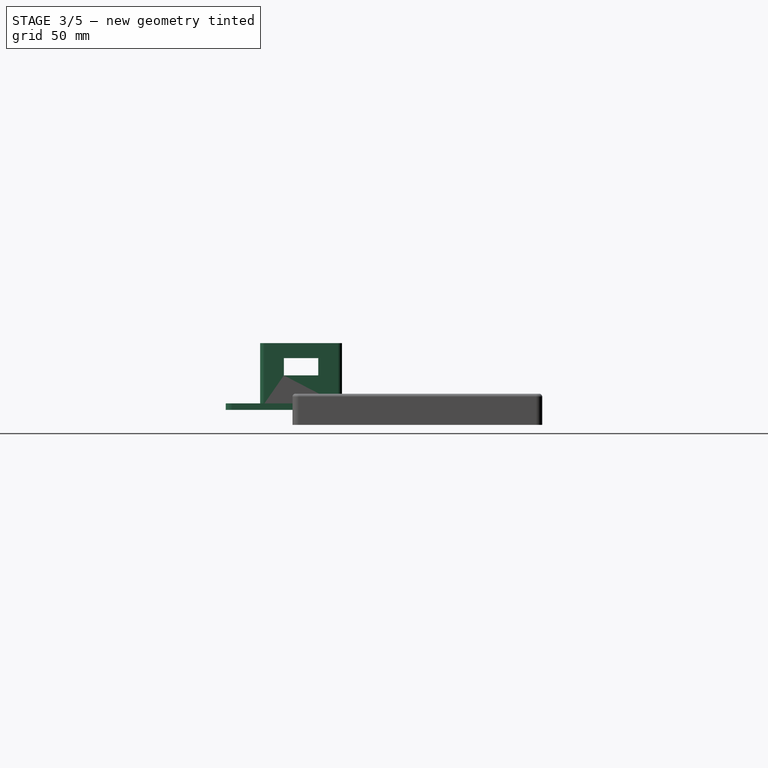
[diagram: stage 3 of 5 — right view after this stage's code; geometry added in this stage tinted green]
FEATURE [Sketcher::SketchObject] Sketch
  ArcFitTolerance = 1e-06
  AttachmentSupport = -> [XY_Plane]
  FullyConstrained = true
  MakeInternals = false
  MapMode = 5
  sketch-geometry (43):
    g0: LineSegment StartX=-35 StartY=32 StartZ=0 EndX=-35 EndY=-32 EndZ=0
    g1: LineSegment StartX=-32 StartY=-35 StartZ=0 EndX=32 EndY=-35 EndZ=0
    g2: LineSegment StartX=35 StartY=-32 StartZ=0 EndX=35 EndY=32 EndZ=0
    g3: LineSegment StartX=32 StartY=35 StartZ=0 EndX=-32 EndY=35 EndZ=0
    g4: ArcOfCircle CenterX=-32 CenterY=32 CenterZ=0 NormalX=0 NormalY=0 NormalZ=1 AngleXU=0 Radius=3 StartAngle=1.5708 EndAngle=3.14159
    g5: ArcOfCircle CenterX=-32 CenterY=-32 CenterZ=0 NormalX=0 NormalY=0 NormalZ=1 AngleXU=0 Radius=3 StartAngle=3.14159 EndAngle=4.71239
    g6: ArcOfCircle CenterX=32 CenterY=-32 CenterZ=0 NormalX=0 NormalY=0 NormalZ=1 AngleXU=0 Radius=3 StartAngle=4.71239 EndAngle=6.28319
    g7: ArcOfCircle CenterX=32 CenterY=32 CenterZ=0 NormalX=0 NormalY=0 NormalZ=1 AngleXU=0 Radius=3 StartAngle=0 EndAngle=1.5708
    g8: GeomPoint [constr] X=-35 Y=35 Z=0
    g9: GeomPoint [constr] X=35 Y=-35 Z=0
    g10: LineSegment StartX=7.25 StartY=-15 StartZ=0 EndX=11.75 EndY=-15 EndZ=0
    g11: ArcOfCircle CenterX=7.25 CenterY=-14 CenterZ=0 NormalX=0 NormalY=0 NormalZ=1 AngleXU=0 Radius=1 StartAngle=3.14159 EndAngle=4.71239
    g12: ArcOfCircle CenterX=11.75 CenterY=-14 CenterZ=0 NormalX=0 NormalY=0 NormalZ=1 AngleXU=0 Radius=1 StartAngle=4.71239 EndAngle=6.28319
    g13: GeomPoint [constr] X=12.75 Y=-15 Z=0
    g14: LineSegment StartX=6.25 StartY=-1 StartZ=0 EndX=6.25 EndY=-14 EndZ=0
    g15: LineSegment StartX=15 StartY=1 StartZ=0 EndX=15 EndY=14 EndZ=0
    g16: LineSegment StartX=12.75 StartY=-14 StartZ=0 EndX=12.75 EndY=-1 EndZ=0
    g17: LineSegment StartX=13.75 StartY=7.84616e-09 StartZ=0 EndX=14 EndY=7.84616e-09 EndZ=0
    g18: ArcOfCircle CenterX=14 CenterY=1 CenterZ=0 NormalX=0 NormalY=0 NormalZ=1 AngleXU=0 Radius=1 StartAngle=4.71239 EndAngle=6.28319
    g19: GeomPoint [constr] X=15 Y=7.84616e-09 Z=0
    g20: ArcOfCircle CenterX=14 CenterY=14 CenterZ=0 NormalX=0 NormalY=0 NormalZ=1 AngleXU=0 Radius=1 StartAngle=0 EndAngle=1.5708
    g21: ArcOfCircle CenterX=5.25 CenterY=-1 CenterZ=0 NormalX=0 NormalY=0 NormalZ=1 AngleXU=0 Radius=1 StartAngle=0 EndAngle=1.5708
    g22: ArcOfCircle CenterX=13.75 CenterY=-1 CenterZ=0 NormalX=0 NormalY=0 NormalZ=1 AngleXU=0 Radius=1 StartAngle=1.5708 EndAngle=3.14159
    g23: GeomPoint [constr] X=12.75 Y=7.84616e-09 Z=0
    g24: LineSegment StartX=-11.75 StartY=-15 StartZ=0 EndX=-7.25 EndY=-15 EndZ=0
    g25: ArcOfCircle CenterX=-11.75 CenterY=-14 CenterZ=0 NormalX=0 NormalY=0 NormalZ=1 AngleXU=0 Radius=1 StartAngle=3.14159 EndAngle=4.71239
    g26: ArcOfCircle CenterX=-7.25 CenterY=-14 CenterZ=0 NormalX=0 NormalY=0 NormalZ=1 AngleXU=0 Radius=1 StartAngle=4.71239 EndAngle=6.28319
    g27: GeomPoint [constr] X=-6.25 Y=-15 Z=0
    g28: LineSegment StartX=-15 StartY=14 StartZ=0 EndX=-15 EndY=1 EndZ=0
    g29: LineSegment StartX=-14 StartY=-1.8e-15 StartZ=0 EndX=-13.75 EndY=-1.8e-15 EndZ=0
    g30: LineSegment StartX=-12.75 StartY=-1 StartZ=0 EndX=-12.75 EndY=-14 EndZ=0
    g31: LineSegment StartX=-6.25 StartY=-14 StartZ=0 EndX=-6.25 EndY=-1 EndZ=0
    g32: LineSegment StartX=-5.25 StartY=-1.8e-15 StartZ=0 EndX=5.25 EndY=-1.9e-15 EndZ=0
    g33: ArcOfCircle CenterX=-14 CenterY=1 CenterZ=0 NormalX=0 NormalY=0 NormalZ=1 AngleXU=0 Radius=1 StartAngle=3.14159 EndAngle=4.71239
    g34: GeomPoint [constr] X=-15 Y=-1.8e-15 Z=0
    g35: ArcOfCircle CenterX=-14 CenterY=14 CenterZ=0 NormalX=0 NormalY=0 NormalZ=1 AngleXU=0 Radius=1 StartAngle=1.5708 EndAngle=3.14159
    g36: GeomPoint [constr] X=-15 Y=15 Z=0
    g37: ArcOfCircle CenterX=-13.75 CenterY=-1 CenterZ=0 NormalX=0 NormalY=0 NormalZ=1 AngleXU=0 Radius=1 StartAngle=0 EndAngle=1.5708
    g38: GeomPoint [constr] X=-12.75 Y=-1.8e-15 Z=0
    g39: ArcOfCircle CenterX=-5.25 CenterY=-1 CenterZ=0 NormalX=0 NormalY=0 NormalZ=1 AngleXU=0 Radius=1 StartAngle=1.5708 EndAngle=3.14159
    g40: GeomPoint [constr] X=-6.25 Y=-1.8e-15 Z=0
    g41: LineSegment StartX=-14 StartY=15 StartZ=0 EndX=14 EndY=15 EndZ=0
    g42: LineSegment [constr] StartX=-9.5 StartY=0 StartZ=0 EndX=-9.5 EndY=-20 EndZ=0
  constraints (105):
    c: Tangent(g0,g4) = -1.5708
    c: Tangent(g0,g5) = -1.5708
    c: Tangent(g1,g5) = -1.5708
    c: Tangent(g1,g6) = -1.5708
    c: Tangent(g2,g6) = -1.5708
    c: Tangent(g2,g7) = -1.5708
    c: Tangent(g3,g7) = -1.5708
    c: Tangent(g3,g4) = -1.5708
    c: Vertical(g0)
    c: Vertical(g2)
    c: Horizontal(g1)
    c: Equal(g5,g6)
    c: Equal(g6,g7)
    c: PointOnObject(g8,g0)
    c: PointOnObject(g8,g3)
    c: PointOnObject(g9,g1)
    c: PointOnObject(g9,g2)
    c: Distance(g0,g2) = 70
    c: Distance(g1,g3) = 70
    c: Radius(g5) = 3
    c: Symmetric(g3,g3,g-2)
    c: Symmetric(g3,g1,g-1)
    c: Coincident(g14,g11)
    c: Tangent(g10,g11) = -1.5708
    c: Tangent(g10,g12) = -1.5708
    c: Coincident(g16,g12)
    c: Horizontal(g10)
    c: Equal(g11,g12)
    c: PointOnObject(g13,g10)
    c: Radius(g11) = 1
    c: Vertical(g14)
    c: Vertical(g16)
    c: PointOnObject(g13,g16)
    c: Vertical(g15)
    c: Horizontal(g17)
    c: PointOnObject(g19,g17)
    c: PointOnObject(g19,g15)
    c: Tangent(g17,g18) = -1.5708
    c: Tangent(g15,g18) = -1.5708
    c: Tangent(g15,g20) = -1.5708
    c: Equal(g20,g18)
    c: Tangent(g14,g21) = 1.5708
    c: PointOnObject(g23,g16)
    c: PointOnObject(g23,g17)
    c: Tangent(g16,g22) = 1.5708
    c: Tangent(g17,g22) = 1.5708
    c: Equal(g21,g22)
    c: Equal(g22,g18)
    c: Equal(g16,g14)
    c: Coincident(g30,g25)
    c: Tangent(g24,g25) = -1.5708
    c: Tangent(g24,g26) = -1.5708
    c: Coincident(g31,g26)
    c: Horizontal(g24)
    c: Equal(g25,g26)
    c: PointOnObject(g27,g24)
    c: Radius(g25) = 1
    c: Vertical(g30)
    c: Vertical(g31)
    c: PointOnObject(g27,g31)
    c: Vertical(g28)
    c: Horizontal(g29)
    c: DistanceY(g24,g36) = 30
    c: PointOnObject(g34,g28)
    c: PointOnObject(g34,g29)
    c: Tangent(g28,g33) = -1.5708
    c: Tangent(g29,g33) = -1.5708
    c: PointOnObject(g36,g28)
    c: Tangent(g28,g35) = -1.5708
    c: Equal(g33,g35)
    c: PointOnObject(g38,g29)
    c: PointOnObject(g38,g30)
    c: Tangent(g29,g37) = 1.5708
    c: Tangent(g30,g37) = 1.5708
    c: PointOnObject(g40,g31)
    c: PointOnObject(g40,g32)
    c: Tangent(g31,g39) = 1.5708
    c: Tangent(g32,g39) = 1.5708
    c: DistanceY(g29,g35) = 15
    c: Radius(g33) = 1
    c: DistanceX(g25,g26) = 4.5
    c: Equal(g14,g30)
    c: DistanceY(g13,g12) = 1
    c: Symmetric(g26,g11,g-2)
    c: DistanceY(g24,g-1) = 15
    c: DistanceY(g31,g32) = 1
    c: Coincident(g21,g32)
    c: Coincident(g41,g35)
    c: Coincident(g41,g20)
    c: DistanceX(g28,g15) = 30
    c: Equal(g17,g29)
    c: Symmetric(g32,g21,g-2)
    c: Equal(g14,g31)
    c: DistanceY(g24,g25) = 1
    c: DistanceY(g30,g29) = 1
    c: DistanceX(g11,g11) = 1
    c: DistanceY(g10,g17) = 15
    c: Symmetric(g35,g20,g-2)
    c: DistanceY(g35,g35) = 1
    c: Distance(g42) = 20
    c: PointOnObject(g42,g-1)
    c: Symmetric(g25,g26,g42)
    c: DistanceY(g20,g20) = 1
    c: DistanceY(g27,g26) = 1
    c: DistanceX(g42,g-1) = 9.5
FEATURE [PartDesign::Pad] Pad
  Direction = (0,0,1)
  Length = 3
  Length2 = 10
  Profile = -> Sketch
  ReferenceAxis = -> Sketch [N_Axis]
  Refine = true
  Suppressed = false
  Type = 0
FEATURE [Sketcher::SketchObject] Sketch001
  ArcFitTolerance = 1e-06
  AttachmentSupport = -> [Pad]
  FullyConstrained = false
  MakeInternals = false
  MapMode = 5
  Placement = pos=(0,0,3) rot=(0,0,1;0rad)
  expr: Constraints[24] = <<Dimensions>>.faceplate_rounder
  expr: Constraints[25] = <<Dimensions>>.faceplate_rounder
  expr: Constraints[26] = <<Dimensions>>.faceplate_rounder
  expr: Constraints[29] = <<Dimensions>>.faceplate_rounder
  expr: Constraints[30] = <<Dimensions>>.faceplate_rounder
  expr: Constraints[31] = <<Dimensions>>.faceplate_rounder
  expr: Constraints[32] = <<Dimensions>>.faceplate_rounder
  expr: Constraints[33] = <<Dimensions>>.faceplate_rounder
  expr: Constraints[34] = <<Dimensions>>.faceplate_rounder
  expr: Constraints[37] = <<Dimensions>>.faceplate_rounder
  expr: Constraints[38] = <<Dimensions>>.faceplate_rounder
  expr: Constraints[39] = <<Dimensions>>.faceplate_rounder
  expr: Constraints[45] = <<Dimensions>>.faceplate_rounder
  expr: Constraints[46] = <<Dimensions>>.faceplate_rounder
  expr: Constraints[47] = <<Dimensions>>.faceplate_rounder
  expr: Constraints[48] = <<Dimensions>>.faceplate_rounder
  expr: Constraints[49] = <<Dimensions>>.faceplate_rounder
  expr: Constraints[50] = <<Dimensions>>.faceplate_rounder
  expr: Constraints[52] = <<Dimensions>>.faceplate_rounder
  expr: Constraints[55] = <<Dimensions>>.faceplate_rounder
  expr: Constraints[58] = <<Dimensions>>.faceplate_rounder
  expr: Constraints[62] = <<Dimensions>>.faceplate_rounder
  expr: Constraints[63] = <<Dimensions>>.faceplate_rounder
  expr: Constraints[64] = <<Dimensions>>.faceplate_rounder
  expr: Constraints[66] = <<Dimensions>>.faceplate_rounder
  expr: Constraints[68] = <<Dimensions>>.faceplate_rounder
  expr: Constraints[74] = <<Dimensions>>.faceplate_rounder
  expr: Constraints[75] = <<Dimensions>>.faceplate_rounder
  expr: Constraints[76] = <<Dimensions>>.faceplate_rounder
  expr: Constraints[77] = <<Dimensions>>.faceplate_rounder
  expr: Constraints[78] = <<Dimensions>>.faceplate_rounder
  expr: Constraints[79] = <<Dimensions>>.faceplate_rounder
  expr: Constraints[80] = <<Dimensions>>.faceplate_rounder
  expr: Constraints[81] = <<Dimensions>>.faceplate_rounder
  sketch-geometry (28):
    g0: LineSegment StartX=-24 StartY=17 StartZ=0 EndX=-24 EndY=-17 EndZ=0
    g1: LineSegment StartX=-22 StartY=-19 StartZ=0 EndX=22 EndY=-19 EndZ=0
    g2: LineSegment StartX=24 StartY=-17 StartZ=0 EndX=24 EndY=17 EndZ=0
    g3: LineSegment StartX=22 StartY=19 StartZ=0 EndX=-22 EndY=19 EndZ=0
    g4: ArcOfCircle CenterX=-22 CenterY=17 CenterZ=0 NormalX=0 NormalY=0 NormalZ=1 AngleXU=0 Radius=2 StartAngle=1.5708 EndAngle=3.14159
    g5: ArcOfCircle CenterX=-22 CenterY=-17 CenterZ=0 NormalX=0 NormalY=0 NormalZ=1 AngleXU=0 Radius=2 StartAngle=3.14159 EndAngle=4.71239
    g6: ArcOfCircle CenterX=22 CenterY=-17 CenterZ=0 NormalX=0 NormalY=0 NormalZ=1 AngleXU=0 Radius=2 StartAngle=4.71239 EndAngle=6.28319
    g7: ArcOfCircle CenterX=22 CenterY=17 CenterZ=0 NormalX=0 NormalY=0 NormalZ=1 AngleXU=0 Radius=2 StartAngle=0 EndAngle=1.5708
    g8: GeomPoint [constr] X=-24 Y=19 Z=0
    g9: GeomPoint [constr] X=24 Y=-19 Z=0
    g10: GeomPoint [constr] X=-23 Y=18 Z=0
    g11: GeomPoint [constr] X=23 Y=-18 Z=0
    g12: LineSegment StartX=12.4 StartY=16.1 StartZ=0 EndX=-12.4 EndY=16.1 EndZ=0
    g13: LineSegment StartX=-21.1 StartY=7.4 StartZ=0 EndX=-21.1 EndY=-7.4 EndZ=0
    g14: ArcOfCircle CenterX=-12.4 CenterY=13.2 CenterZ=0 NormalX=0 NormalY=0 NormalZ=1 AngleXU=0 Radius=2.9 StartAngle=1.5708 EndAngle=3.14159
    g15: ArcOfCircle CenterX=-18.2 CenterY=13.2 CenterZ=0 NormalX=0 NormalY=0 NormalZ=1 AngleXU=0 Radius=2.9 StartAngle=4.71239 EndAngle=6.28319
    g16: ArcOfCircle CenterX=-18.2 CenterY=7.4 CenterZ=0 NormalX=0 NormalY=0 NormalZ=1 AngleXU=0 Radius=2.9 StartAngle=1.5708 EndAngle=3.14159
    g17: ArcOfCircle CenterX=12.4 CenterY=13.2 CenterZ=0 NormalX=0 NormalY=0 NormalZ=1 AngleXU=0 Radius=2.9 StartAngle=-9e-16 EndAngle=1.5708
    g18: ArcOfCircle CenterX=18.2 CenterY=13.2 CenterZ=0 NormalX=0 NormalY=0 NormalZ=1 AngleXU=0 Radius=2.9 StartAngle=3.14159 EndAngle=4.71239
    g19: ArcOfCircle CenterX=18.2 CenterY=7.4 CenterZ=0 NormalX=0 NormalY=0 NormalZ=1 AngleXU=0 Radius=2.9 StartAngle=1e-16 EndAngle=1.5708
    g20: LineSegment StartX=21.1 StartY=7.4 StartZ=0 EndX=21.1 EndY=-7.4 EndZ=0
    g21: LineSegment StartX=-12.4 StartY=-16.1 StartZ=0 EndX=12.4 EndY=-16.1 EndZ=0
    g22: ArcOfCircle CenterX=-18.2 CenterY=-7.4 CenterZ=0 NormalX=0 NormalY=0 NormalZ=1 AngleXU=0 Radius=2.9 StartAngle=3.14159 EndAngle=4.71239
    g23: ArcOfCircle CenterX=-18.2 CenterY=-13.2 CenterZ=0 NormalX=0 NormalY=0 NormalZ=1 AngleXU=0 Radius=2.9 StartAngle=3.26795e-07 EndAngle=1.5708
    g24: ArcOfCircle CenterX=-12.4 CenterY=-13.2 CenterZ=0 NormalX=0 NormalY=0 NormalZ=1 AngleXU=0 Radius=2.9 StartAngle=3.14159 EndAngle=4.71239
    g25: ArcOfCircle CenterX=12.4 CenterY=-13.2 CenterZ=0 NormalX=0 NormalY=0 NormalZ=1 AngleXU=0 Radius=2.9 StartAngle=4.71239 EndAngle=6.28318
    g26: ArcOfCircle CenterX=18.2 CenterY=-13.2 CenterZ=0 NormalX=0 NormalY=0 NormalZ=1 AngleXU=0 Radius=2.9 StartAngle=1.5708 EndAngle=3.14159
    g27: ArcOfCircle CenterX=18.2 CenterY=-7.4 CenterZ=0 NormalX=0 NormalY=0 NormalZ=1 AngleXU=0 Radius=2.9 StartAngle=4.71239 EndAngle=6.28318
  constraints (82):
    c: Tangent(g0,g4) = -1.5708
    c: Tangent(g0,g5) = -1.5708
    c: Tangent(g1,g5) = -1.5708
    c: Tangent(g1,g6) = -1.5708
    c: Tangent(g2,g6) = -1.5708
    c: Tangent(g2,g7) = -1.5708
    c: Tangent(g3,g7) = -1.5708
    c: Tangent(g3,g4) = -1.5708
    c: Vertical(g0)
    c: Vertical(g2)
    c: Horizontal(g1)
    c: Equal(g5,g6)
    c: Equal(g6,g7)
    c: PointOnObject(g8,g0)
    c: PointOnObject(g8,g3)
    c: PointOnObject(g9,g1)
    c: PointOnObject(g9,g2)
    c: Radius(g5) = 2
    c: Symmetric(g3,g3,g-2)
    c: Symmetric(g1,g3,g-1)
    c: DistanceX(g0,g2) = 48
    c: DistanceY(g1,g3) = 38
    c: Horizontal(g12)
    c: Vertical(g13)
    c: Radius(g14) = 2.9
    c: Radius(g15) = 2.9
    c: Radius(g16) = 2.9
    c: Coincident(g13,g16)
    c: Coincident(g14,g12)
    c: DistanceY(g13,g16) = 2.9
    c: DistanceX(g13,g16) = 2.9
    c: DistanceY(g15,g15) = 2.9
    c: DistanceX(g15,g15) = 2.9
    c: DistanceY(g14,g12) = 2.9
    c: DistanceX(g14,g12) = 2.9
    c: Coincident(g15,g14)
    c: Coincident(g15,g16)
    c: Radius(g17) = 2.9
    c: Radius(g18) = 2.9
    c: Radius(g19) = 2.9
    c: Vertical(g20)
    c: Coincident(g19,g20)
    c: Coincident(g19,g18)
    c: Coincident(g18,g17)
    c: Coincident(g17,g12)
    c: DistanceY(g17,g12) = 2.9
    c: DistanceX(g17,g18) = 2.9
    c: DistanceX(g12,g17) = 2.9
    c: DistanceY(g18,g17) = 2.9
    c: DistanceX(g18,g19) = 2.9
    c: DistanceY(g19,g18) = 2.9
    c: Horizontal(g21)
    c: Radius(g22) = 2.9
    c: Angle(g22) = 1.5708
    c: Coincident(g13,g22)
    c: Radius(g23) = 2.9
    c: Angle(g23) = 1.5708
    c: Coincident(g23,g22)
    c: Radius(g24) = 2.9
    c: Angle(g24) = 1.5708
    c: Coincident(g24,g21)
    c: Coincident(g24,g23)
    c: DistanceX(g13,g22) = 2.9
    c: DistanceX(g22,g23) = 2.9
    c: Radius(g25) = 2.9
    c: Angle(g25) = 1.5708
    c: Radius(g26) = 2.9
    c: Angle(g26) = 1.5708
    c: Radius(g27) = 2.9
    c: Angle(g27) = 1.5708
    c: Coincident(g26,g27)
    c: Coincident(g25,g26)
    c: Coincident(g25,g21)
    c: Coincident(g27,g20)
    c: DistanceX(g21,g25) = 2.9
    c: DistanceX(g25,g26) = 2.9
    c: DistanceX(g26,g20) = 2.9
    c: DistanceY(g21,g23) = 2.9
    c: DistanceX(g0,g13) = 2.9
    c: DistanceX(g19,g2) = 2.9
    c: DistanceY(g12,g3) = 2.9
    c: DistanceY(g1,g21) = 2.9
FEATURE [PartDesign::Pad] Pad001
  BaseFeature = -> Pad
  Direction = (0,0,1)
  Length = 28
  Length2 = 10
  Profile = -> Sketch001
  ReferenceAxis = -> Sketch001 [N_Axis]
  Refine = true
  Suppressed = false
  Type = 0
FEATURE [Sketcher::SketchObject] Sketch002
  ArcFitTolerance = 1e-06
  AttachmentSupport = -> [Pad001]
  FullyConstrained = true
  MakeInternals = false
  MapMode = 5
  Placement = pos=(-24,0,0) rot=(0.57735,-0.57735,-0.57735;2.0944rad)
  sketch-geometry (4):
    g0: LineSegment StartX=-8 StartY=24 StartZ=0 EndX=-8 EndY=16 EndZ=0
    g1: LineSegment StartX=-8 StartY=16 StartZ=0 EndX=8 EndY=16 EndZ=0
    g2: LineSegment StartX=8 StartY=16 StartZ=0 EndX=8 EndY=24 EndZ=0
    g3: LineSegment StartX=8 StartY=24 StartZ=0 EndX=-8 EndY=24 EndZ=0
  constraints (11):
    c: Coincident(g0,g1)
    c: Coincident(g1,g2)
    c: Coincident(g2,g3)
    c: Coincident(g3,g0)
    c: Vertical(g0)
    c: Vertical(g2)
    c: Horizontal(g3)
    c: DistanceY(g-1,g1) = 16
    c: DistanceY(g2,g2) = 8
    c: DistanceX(g3,g3) = 16
    c: Symmetric(g1,g0,g-2)
FEATURE [PartDesign::Pocket] Pocket
  BaseFeature = -> Pad001
  Direction = (1,0,0)
  Length = 125
  Length2 = 5
  Profile = -> Sketch002
  ReferenceAxis = -> Sketch002 [N_Axis]
  Refine = true
  Suppressed = false
  Type = 0
FEATURE [Sketcher::SketchObject] Sketch003
  ArcFitTolerance = 1e-06
  AttachmentSupport = -> [Pocket]
  FullyConstrained = true
  MakeInternals = false
  MapMode = 5
  Placement = pos=(0,0,31) rot=(0,0,1;0rad)
  sketch-geometry (4):
    g0: Circle CenterX=-19.5 CenterY=14.5 CenterZ=0 NormalX=0 NormalY=0 NormalZ=1 AngleXU=0 Radius=2.1
    g1: Circle CenterX=19.5 CenterY=14.5 CenterZ=0 NormalX=0 NormalY=0 NormalZ=1 AngleXU=0 Radius=2.1
    g2: Circle CenterX=19.5 CenterY=-14.5 CenterZ=0 NormalX=0 NormalY=0 NormalZ=1 AngleXU=0 Radius=2.1
    g3: Circle CenterX=-19.5 CenterY=-14.5 CenterZ=0 NormalX=0 NormalY=0 NormalZ=1 AngleXU=0 Radius=2.1
  constraints (9):
    c: Equal(g3,g2)
    c: Equal(g2,g1)
    c: Equal(g1,g0)
    c: Diameter(g0) = 4.2
    c: Symmetric(g0,g1,g-2)
    c: Symmetric(g1,g2,g-1)
    c: Symmetric(g0,g3,g-1)
    c: DistanceX(g0,g-1) = 19.5
    c: DistanceY(g-1,g0) = 14.5
FEATURE [PartDesign::Pocket] Pocket001
  BaseFeature = -> Pocket
  Direction = (0,0,-1)
  Length = 7
  Length2 = 5
  Profile = -> Sketch003
  ReferenceAxis = -> Sketch003 [N_Axis]
  Refine = true
  Suppressed = false
  Type = 0
FEATURE [PartDesign::Pad] Pad017  label="SD Card"
  BaseFeature = -> Pad016
  Direction = (0,0,1)
  Length = 2
  Length2 = 10
  Profile = -> Sketch033
  ReferenceAxis = -> Sketch033 [N_Axis]
  Reversed = true
  Suppressed = false
  Type = 0
FEATURE [PartDesign::Pad] Pad006  label="Buttons"
  BaseFeature = -> Pad017
  Direction = (0,0,1)
  Length = 4
  Length2 = 10
  Profile = -> Sketch032
  ReferenceAxis = -> Sketch032 [N_Axis]
  Reversed = true
  Suppressed = false
  Type = 0
FEATURE [PartDesign::Pad] Pad007  label="Keep-away"
  BaseFeature = -> Pad006
  Direction = (0,0,1)
  Length = 5
  Length2 = 10
  Profile = -> Sketch007
  ReferenceAxis = -> Sketch007 [N_Axis]
  Reversed = true
  Suppressed = false
  Type = 0
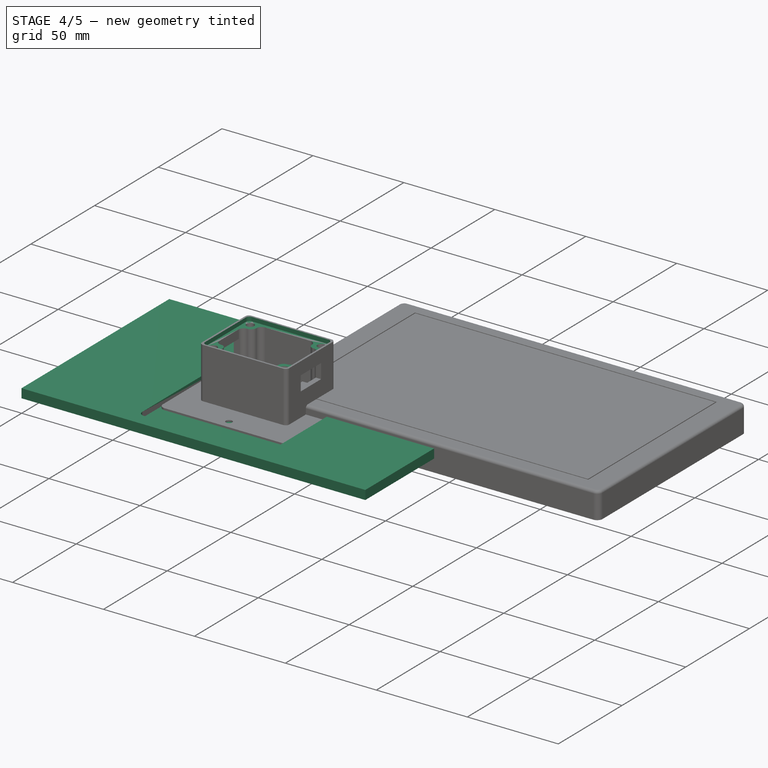
[diagram: stage 4 of 5 — iso view after this stage's code; geometry added in this stage tinted green]
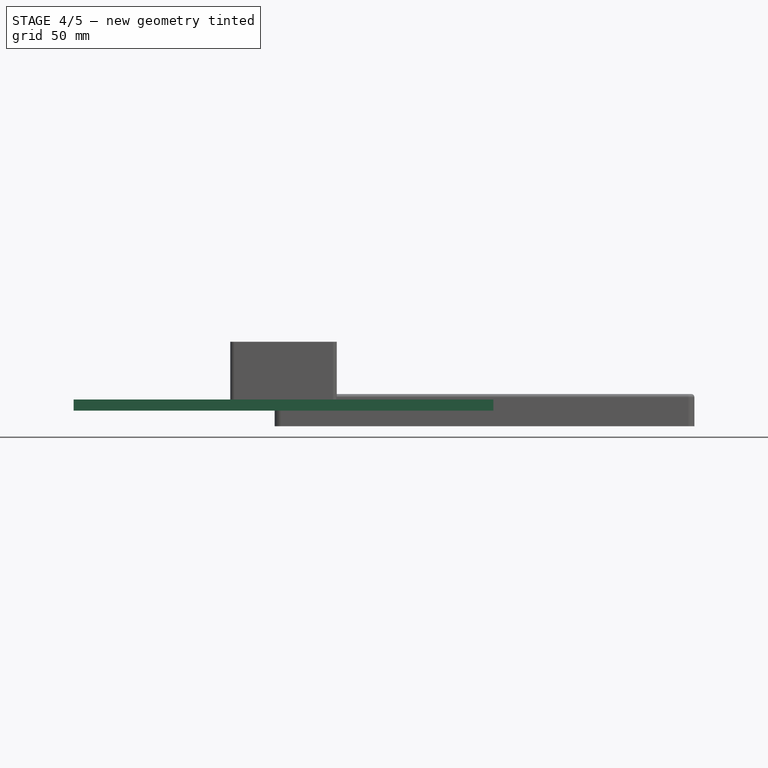
[diagram: stage 4 of 5 — front view after this stage's code; geometry added in this stage tinted green]
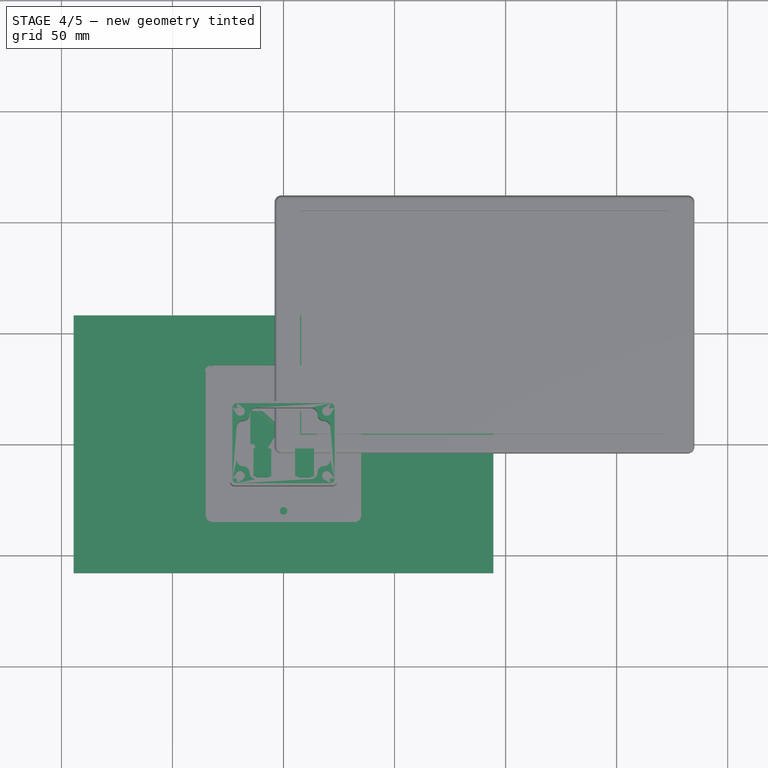
[diagram: stage 4 of 5 — top view after this stage's code; geometry added in this stage tinted green]
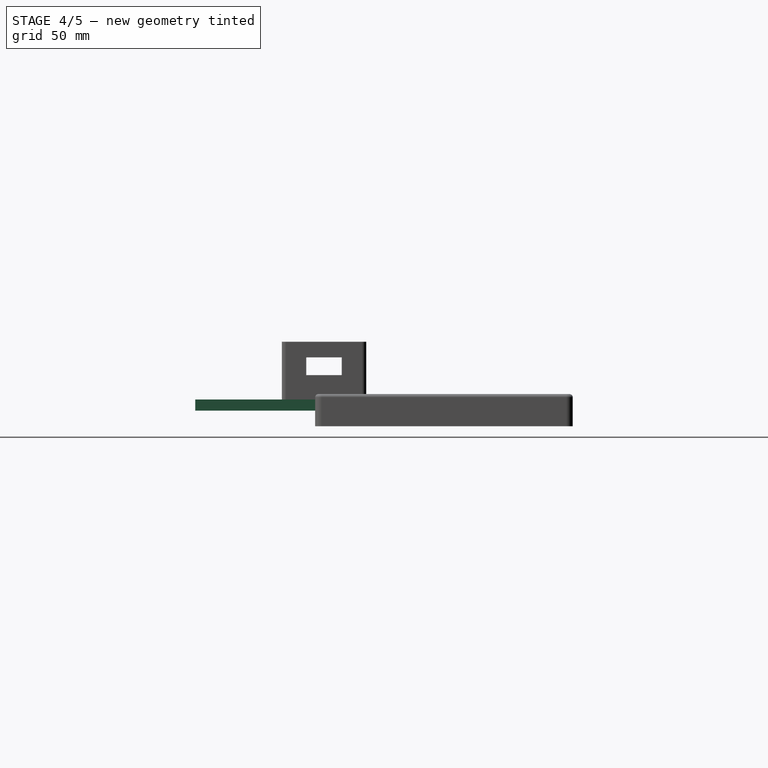
[diagram: stage 4 of 5 — right view after this stage's code; geometry added in this stage tinted green]
FEATURE [PartDesign::Body] Body001  label="converter plate"
  AllowCompound = false
  Group = -> [Sketch004,Pad002,Sketch005,Pad003,Sketch006,Pocket002]
  Origin = -> Origin002
  Placement = pos=(0,0,29) rot=(0,0,1;0rad)
  Tip = -> Pocket002
FEATURE [Sketcher::SketchObject] Sketch009
  ArcFitTolerance = 1e-06
  AttachmentSupport = -> [XY_Plane003]
  FullyConstrained = true
  MakeInternals = false
  MapMode = 5
  sketch-geometry (4):
    g0: LineSegment StartX=-94.5 StartY=-58 StartZ=0 EndX=94.5 EndY=-58 EndZ=0
    g1: LineSegment StartX=94.5 StartY=-58 StartZ=0 EndX=94.5 EndY=58 EndZ=0
    g2: LineSegment StartX=94.5 StartY=58 StartZ=0 EndX=-94.5 EndY=58 EndZ=0
    g3: LineSegment StartX=-94.5 StartY=58 StartZ=0 EndX=-94.5 EndY=-58 EndZ=0
  constraints (9):
    c: Coincident(g0,g1)
    c: Coincident(g1,g2)
    c: Coincident(g2,g3)
    c: Coincident(g3,g0)
    c: DistanceX(g0,g0) = 189
    c: DistanceY(g1,g1) = 116
    c: Symmetric(g2,g1,g-2)
    c: Symmetric(g0,g0,g-2)
    c: Symmetric(g2,g0,g-1)
FEATURE [PartDesign::Pad] Pad004
  Direction = (0,0,1)
  Length = 5
  Length2 = 10
  Profile = -> Sketch009
  ReferenceAxis = -> Sketch009 [N_Axis]
  Refine = true
  Suppressed = false
  Type = 0
FEATURE [Sketcher::SketchObject] Sketch010
  ArcFitTolerance = 1e-06
  AttachmentSupport = -> [Pad004]
  FullyConstrained = true
  MakeInternals = false
  MapMode = 5
  Placement = pos=(0,0,5) rot=(0,0,1;0rad)
  sketch-geometry (10):
    g0: LineSegment StartX=-35.5 StartY=32.5 StartZ=0 EndX=-35.5 EndY=-47.5 EndZ=0
    g1: LineSegment StartX=-32.5 StartY=-50.5 StartZ=0 EndX=32.5 EndY=-50.5 EndZ=0
    g2: LineSegment StartX=35.5 StartY=-47.5 StartZ=0 EndX=35.5 EndY=32.5 EndZ=0
    g3: LineSegment StartX=32.5 StartY=35.5 StartZ=0 EndX=-32.5 EndY=35.5 EndZ=0
    g4: ArcOfCircle CenterX=-32.5 CenterY=32.5 CenterZ=0 NormalX=0 NormalY=0 NormalZ=1 AngleXU=0 Radius=3 StartAngle=1.5708 EndAngle=3.14159
    g5: ArcOfCircle CenterX=-32.5 CenterY=-47.5 CenterZ=0 NormalX=0 NormalY=0 NormalZ=1 AngleXU=0 Radius=3 StartAngle=3.14159 EndAngle=4.71239
    g6: ArcOfCircle CenterX=32.5 CenterY=-47.5 CenterZ=0 NormalX=0 NormalY=0 NormalZ=1 AngleXU=0 Radius=3 StartAngle=4.71239 EndAngle=6.28319
    g7: ArcOfCircle CenterX=32.5 CenterY=32.5 CenterZ=0 NormalX=0 NormalY=0 NormalZ=1 AngleXU=0 Radius=3 StartAngle=-1.26459e-11 EndAngle=1.5708
    g8: GeomPoint [constr] X=-35.5 Y=35.5 Z=0
    g9: GeomPoint [constr] X=35.5 Y=-50.5 Z=0
  constraints (23):
    c: Tangent(g0,g4) = -1.5708
    c: Tangent(g0,g5) = -1.5708
    c: Tangent(g1,g5) = -1.5708
    c: Tangent(g1,g6) = -1.5708
    c: Tangent(g2,g6) = -1.5708
    c: Tangent(g2,g7) = -1.5708
    c: Tangent(g3,g7) = -1.5708
    c: Tangent(g3,g4) = -1.5708
    c: Vertical(g0)
    c: Vertical(g2)
    c: Horizontal(g1)
    c: Horizontal(g3)
    c: Equal(g4,g5)
    c: Equal(g5,g6)
    c: PointOnObject(g8,g0)
    c: PointOnObject(g8,g3)
    c: PointOnObject(g9,g1)
    c: PointOnObject(g9,g2)
    c: Radius(g5) = 3
    c: DistanceX(g0,g2) = 71
    c: DistanceY(g1,g3) = 86
    c: Symmetric(g0,g2,g-2)
    c: DistanceY(g-1,g3) = 35.5
FEATURE [PartDesign::Pocket] Pocket005  label="faceplate pocket"
  BaseFeature = -> Pad004
  Direction = (0,0,-1)
  Length = 3
  Length2 = 5
  Profile = -> Sketch010
  ReferenceAxis = -> Sketch010 [N_Axis]
  Refine = true
  Suppressed = false
  Type = 0
FEATURE [Sketcher::SketchObject] Sketch011
  ArcFitTolerance = 1e-06
  AttachmentSupport = -> [Pocket005]
  FullyConstrained = true
  MakeInternals = false
  MapMode = 5
  Placement = pos=(0,0,0) rot=(1,0,0;3.14159rad)
  sketch-geometry (10):
    g0: LineSegment StartX=-2 StartY=6.5 StartZ=0 EndX=-2 EndY=-6.5 EndZ=0
    g1: LineSegment StartX=-1 StartY=-7.5 StartZ=0 EndX=1 EndY=-7.5 EndZ=0
    g2: LineSegment StartX=2 StartY=-6.5 StartZ=0 EndX=2 EndY=6.5 EndZ=0
    g3: LineSegment StartX=1 StartY=7.5 StartZ=0 EndX=-1 EndY=7.5 EndZ=0
    g4: ArcOfCircle CenterX=-1 CenterY=6.5 CenterZ=0 NormalX=0 NormalY=0 NormalZ=1 AngleXU=0 Radius=1 StartAngle=1.5708 EndAngle=3.14159
    g5: ArcOfCircle CenterX=-1 CenterY=-6.5 CenterZ=0 NormalX=0 NormalY=0 NormalZ=1 AngleXU=0 Radius=1 StartAngle=3.14159 EndAngle=4.71239
    g6: ArcOfCircle CenterX=1 CenterY=-6.5 CenterZ=0 NormalX=0 NormalY=0 NormalZ=1 AngleXU=0 Radius=1 StartAngle=4.71239 EndAngle=6.28319
    g7: ArcOfCircle CenterX=1 CenterY=6.5 CenterZ=0 NormalX=0 NormalY=0 NormalZ=1 AngleXU=0 Radius=1 StartAngle=0 EndAngle=1.5708
    g8: GeomPoint [constr] X=-2 Y=7.5 Z=0
    g9: GeomPoint [constr] X=2 Y=-7.5 Z=0
  constraints (23):
    c: Tangent(g0,g4) = -1.5708
    c: Tangent(g0,g5) = -1.5708
    c: Tangent(g1,g5) = -1.5708
    c: Tangent(g1,g6) = -1.5708
    c: Tangent(g2,g6) = -1.5708
    c: Tangent(g2,g7) = -1.5708
    c: Tangent(g3,g7) = -1.5708
    c: Tangent(g3,g4) = -1.5708
    c: Vertical(g0)
    c: Vertical(g2)
    c: Horizontal(g1)
    c: Horizontal(g3)
    c: Equal(g4,g5)
    c: Equal(g5,g6)
    c: PointOnObject(g8,g0)
    c: PointOnObject(g8,g3)
    c: PointOnObject(g9,g1)
    c: PointOnObject(g9,g2)
    c: Distance(g0,g2) = 4
    c: Distance(g1,g3) = 15
    c: Radius(g5) = 1
    c: Symmetric(g2,g0,g-2)
    c: DistanceY(g-1,g3) = 7.5
FEATURE [PartDesign::Pocket] Pocket006  label="cable pocket"
  BaseFeature = -> Pocket005
  Direction = (0,0,1)
  Length = 5
  Length2 = 5
  Profile = -> Sketch011
  ReferenceAxis = -> Sketch011 [N_Axis]
  Refine = true
  Suppressed = false
  Type = 0
FEATURE [Sketcher::SketchObject] Sketch012
  ArcFitTolerance = 1e-06
  AttachmentOffset = pos=(0,5,0) rot=(0,0,1;3.14159rad)
  AttachmentSupport = -> [XZ_Plane003]
  FullyConstrained = true
  MakeInternals = false
  MapMode = 5
  Placement = pos=(0,1e-15,5) rot=(0,-0.707107,0.707107;3.14159rad)
  sketch-geometry (18):
    g0: LineSegment StartX=-13.75 StartY=-2.75 StartZ=0 EndX=-5.25 EndY=-2.75 EndZ=0
    g1: LineSegment StartX=-7 StartY=3 StartZ=0 EndX=-12 EndY=3 EndZ=0
    g2: LineSegment StartX=5.5 StartY=-2.75 StartZ=0 EndX=13.5 EndY=-2.75 EndZ=0
    g3: LineSegment StartX=11.75 StartY=3 StartZ=0 EndX=7.25 EndY=3 EndZ=0
    g4: LineSegment StartX=-12 StartY=3 StartZ=0 EndX=-12 EndY=0.5 EndZ=0
    g5: LineSegment StartX=-12 StartY=0.5 StartZ=0 EndX=-13.75 EndY=-1.25 EndZ=0
    g6: LineSegment StartX=-13.75 StartY=-1.25 StartZ=0 EndX=-13.75 EndY=-2.75 EndZ=0
    g7: LineSegment StartX=-7 StartY=0.5 StartZ=0 EndX=-7 EndY=3 EndZ=0
    g8: LineSegment StartX=-5.25 StartY=-2.75 StartZ=0 EndX=-5.25 EndY=-1.25 EndZ=0
    g9: LineSegment StartX=-5.25 StartY=-1.25 StartZ=0 EndX=-7 EndY=0.5 EndZ=0
    g10: LineSegment StartX=7.25 StartY=3 StartZ=0 EndX=7.25 EndY=0.5 EndZ=0
    g11: LineSegment StartX=7.25 StartY=0.5 StartZ=0 EndX=5.5 EndY=-1.25 EndZ=0
    g12: LineSegment StartX=5.5 StartY=-1.25 StartZ=0 EndX=5.5 EndY=-2.75 EndZ=0
    g13: LineSegment StartX=11.75 StartY=0.5 StartZ=0 EndX=11.75 EndY=3 EndZ=0
    g14: LineSegment StartX=13.5 StartY=-2.75 StartZ=0 EndX=13.5 EndY=-1.25 EndZ=0
    g15: LineSegment StartX=13.5 StartY=-1.25 StartZ=0 EndX=11.75 EndY=0.5 EndZ=0
    g16: LineSegment [constr] StartX=-9.5 StartY=0 StartZ=0 EndX=-9.5 EndY=20 EndZ=0
    g17: LineSegment [constr] StartX=9.5 StartY=0 StartZ=0 EndX=9.5 EndY=20 EndZ=0
  constraints (52):
    c: Coincident(g6,g0)
    c: Coincident(g0,g8)
    c: Coincident(g7,g1)
    c: Coincident(g1,g4)
    c: Horizontal(g0)
    c: Distance(g4,g7) = 5
    c: DistanceY(g-1,g7) = 3
    c: Coincident(g12,g2)
    c: Coincident(g2,g14)
    c: Coincident(g13,g3)
    c: Coincident(g3,g10)
    c: Horizontal(g2)
    c: Distance(g10,g13) = 4.5
    c: DistanceY(g-1,g10) = 3
    c: Coincident(g4,g5)
    c: Vertical(g4)
    c: Coincident(g5,g6)
    c: Vertical(g6)
    c: Coincident(g9,g7)
    c: Vertical(g7)
    c: Coincident(g8,g9)
    c: Vertical(g10)
    c: Coincident(g11,g12)
    c: Vertical(g12)
    c: Coincident(g15,g13)
    c: Vertical(g13)
    c: Coincident(g14,g15)
    c: Angle(g10,g11) = 2.35619
    c: Angle(g15,g13) = 2.35619
    c: DistanceY(g10,g10) = 2.5
    c: Coincident(g11,g10)
    c: Equal(g13,g10)
    c: Vertical(g14)
    c: DistanceY(g12,g12) = 1.5
    c: Equal(g10,g7)
    c: Equal(g7,g4)
    c: Equal(g14,g8)
    c: Equal(g8,g6)
    c: Angle(g4,g5) = 2.35619
    c: Angle(g9,g7) = 2.35619
    c: Equal(g5,g11)
    c: Distance(g16) = 20
    c: PointOnObject(g16,g-1)
    c: DistanceX(g16,g-1) = 9.5
    c: Distance(g17) = 20
    c: PointOnObject(g17,g-1)
    c: DistanceX(g-1,g17) = 9.5
    c: Symmetric(g1,g1,g16)
    c: Symmetric(g0,g0,g16)
    c: Symmetric(g2,g2,g17)
    c: Symmetric(g3,g3,g17)
    c: DistanceX(g2,g2) = 8
FEATURE [PartDesign::Pad] Pad005  label="Lock Pad"
  BaseFeature = -> Pocket006
  Direction = (0,-1,2e-16)
  Length = 14.5
  Length2 = -2
  Profile = -> Sketch012
  ReferenceAxis = -> Sketch012 [N_Axis]
  Refine = true
  Suppressed = false
  Type = 4
FEATURE [Part::Part2DObjectPython] ShapeString  # Draft 2D object (typed FeaturePython)
  FontFile = <path>
  Fuse = false
  Justification = 6
  JustificationReference = 0
  KeepLeftMargin = false
  MakeFace = true
  ObliqueAngle = 0
  Placement = pos=(9,17,0) rot=(0,1,0;3.14159rad)
  ScaleToSize = true
  Size = 7.5
  String = TOP
  Tracking = 0
FEATURE [PartDesign::Pocket] Pocket016
  BaseFeature = -> Pocket001
  Direction = (-1e-16,0,1)
  Length = 0.5
  Length2 = 5
  Profile = -> ShapeString
  ReferenceAxis = -> ShapeString [N_Axis]
  Refine = true
  Suppressed = false
  Type = 0
FEATURE [Sketcher::SketchObject] Sketch026
  ArcFitTolerance = 1e-06
  AttachmentSupport = -> [Pocket016]
  FullyConstrained = true
  MakeInternals = false
  MapMode = 5
  Placement = pos=(0,0,31) rot=(0,0,1;0rad)
  sketch-geometry (10):
    g0: LineSegment StartX=-23 StartY=16 StartZ=0 EndX=-23 EndY=-16 EndZ=0
    g1: LineSegment StartX=-21 StartY=-18 StartZ=0 EndX=21 EndY=-18 EndZ=0
    g2: LineSegment StartX=23 StartY=-16 StartZ=0 EndX=23 EndY=16 EndZ=0
    g3: LineSegment StartX=21 StartY=18 StartZ=0 EndX=-21 EndY=18 EndZ=0
    g4: ArcOfCircle CenterX=-21 CenterY=16 CenterZ=0 NormalX=0 NormalY=0 NormalZ=1 AngleXU=0 Radius=2 StartAngle=1.5708 EndAngle=3.14159
    g5: ArcOfCircle CenterX=-21 CenterY=-16 CenterZ=0 NormalX=0 NormalY=0 NormalZ=1 AngleXU=0 Radius=2 StartAngle=3.14159 EndAngle=4.71239
    g6: ArcOfCircle CenterX=21 CenterY=-16 CenterZ=0 NormalX=0 NormalY=0 NormalZ=1 AngleXU=0 Radius=2 StartAngle=4.71239 EndAngle=6.28319
    g7: ArcOfCircle CenterX=21 CenterY=16 CenterZ=0 NormalX=0 NormalY=0 NormalZ=1 AngleXU=0 Radius=2 StartAngle=0 EndAngle=1.5708
    g8: GeomPoint [constr] X=-23 Y=18 Z=0
    g9: GeomPoint [constr] X=23 Y=-18 Z=0
  constraints (22):
    c: Tangent(g0,g4) = -1.5708
    c: Tangent(g0,g5) = -1.5708
    c: Tangent(g1,g5) = -1.5708
    c: Tangent(g1,g6) = -1.5708
    c: Tangent(g2,g6) = -1.5708
    c: Tangent(g2,g7) = -1.5708
    c: Tangent(g3,g7) = -1.5708
    c: Tangent(g3,g4) = -1.5708
    c: Vertical(g0)
    c: Vertical(g2)
    c: Horizontal(g1)
    c: Equal(g5,g6)
    c: Equal(g6,g7)
    c: PointOnObject(g8,g0)
    c: PointOnObject(g8,g3)
    c: PointOnObject(g9,g1)
    c: PointOnObject(g9,g2)
    c: Distance(g0,g2) = 46
    c: Distance(g1,g3) = 36
    c: Radius(g5) = 2
    c: Symmetric(g3,g3,g-2)
    c: Symmetric(g3,g1,g-1)
FEATURE [PartDesign::Pocket] Pocket018
  BaseFeature = -> Pocket016
  Direction = (0,0,-1)
  Length = 2.2
  Length2 = 5
  Profile = -> Sketch026
  ReferenceAxis = -> Sketch026 [N_Axis]
  Refine = true
  Suppressed = false
  Type = 0
FEATURE [PartDesign::Body] Body002  label="screen back plate"
  AllowCompound = false
  Group = -> [Sketch009,Pad004,Sketch010,Pocket005,Sketch011,Pocket006,Sketch012,Pad005,Sketch019,Fillet,Fillet001,ShapeString001,Pocket021,Hole]
  Origin = -> Origin003
  Placement = pos=(0,0,-2) rot=(0,0,1;0rad)
  Tip = -> Hole
FEATURE [PartDesign::Hole] Hole001
  BaseFeature = -> Pocket018
  CustomThreadClearance = 0
  Depth = 25
  DepthType = 0
  Diameter = 3.4
  DrillForDepth = false
  DrillPoint = 1
  DrillPointAngle = 118
  HoleCutCountersinkAngle = 90
  HoleCutCustomValues = false
  HoleCutDepth = 1
  HoleCutDiameter = 5.8
  HoleCutType = 3
  ModelThread = false
  Profile = -> Sketch018
  Refine = true
  Suppressed = false
  Tapered = false
  TaperedAngle = 90
  ThreadClass = 0
  ThreadDepth = 25
  ThreadDepthType = 0
  ThreadDirection = 0
  ThreadFit = 0
  ThreadSize = 0
  ThreadType = 0
  Threaded = false
  UseCustomThreadClearance = false
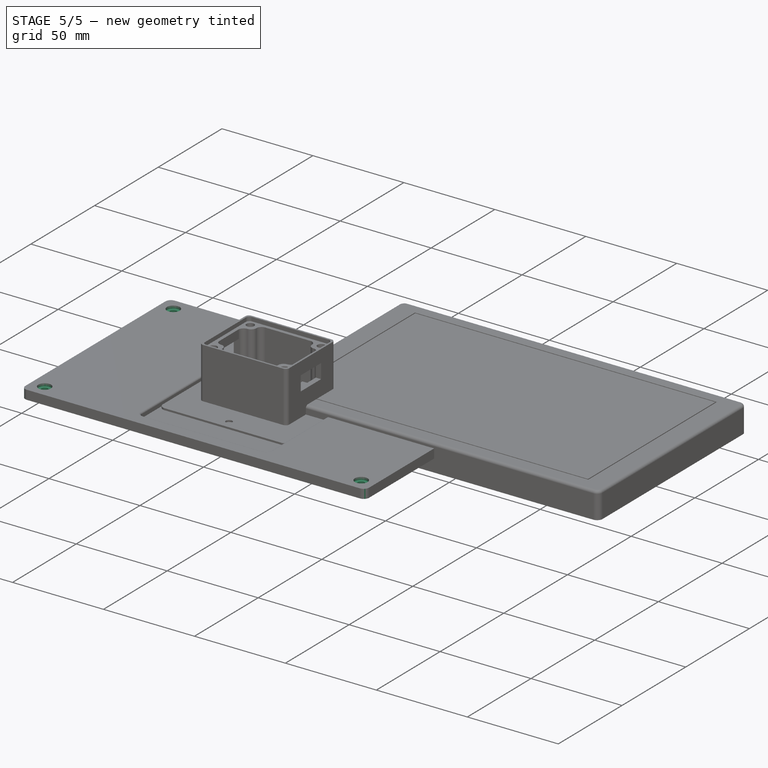
[diagram: stage 5 of 5 — iso view after this stage's code; geometry added in this stage tinted green]
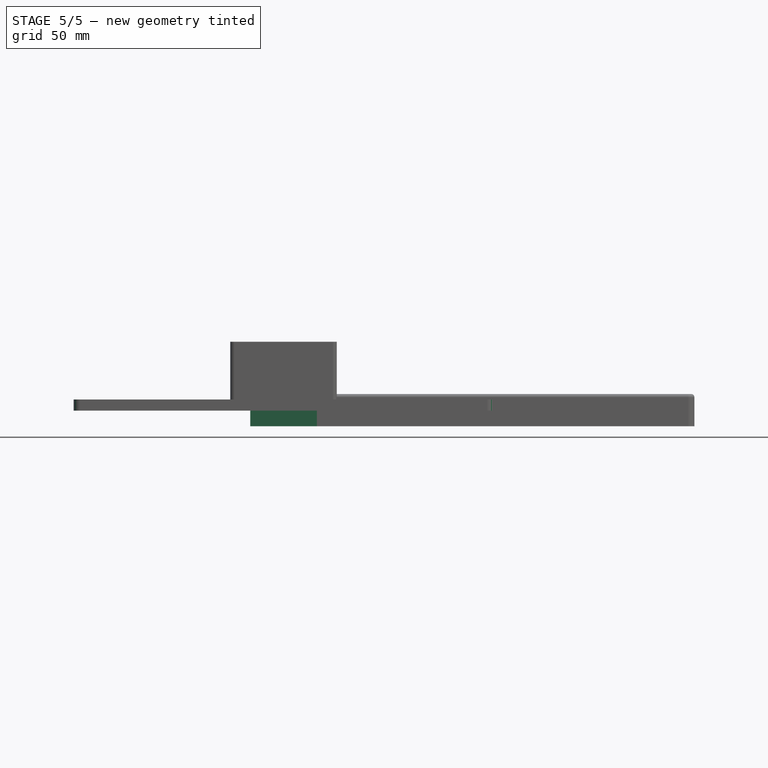
[diagram: stage 5 of 5 — front view after this stage's code; geometry added in this stage tinted green]
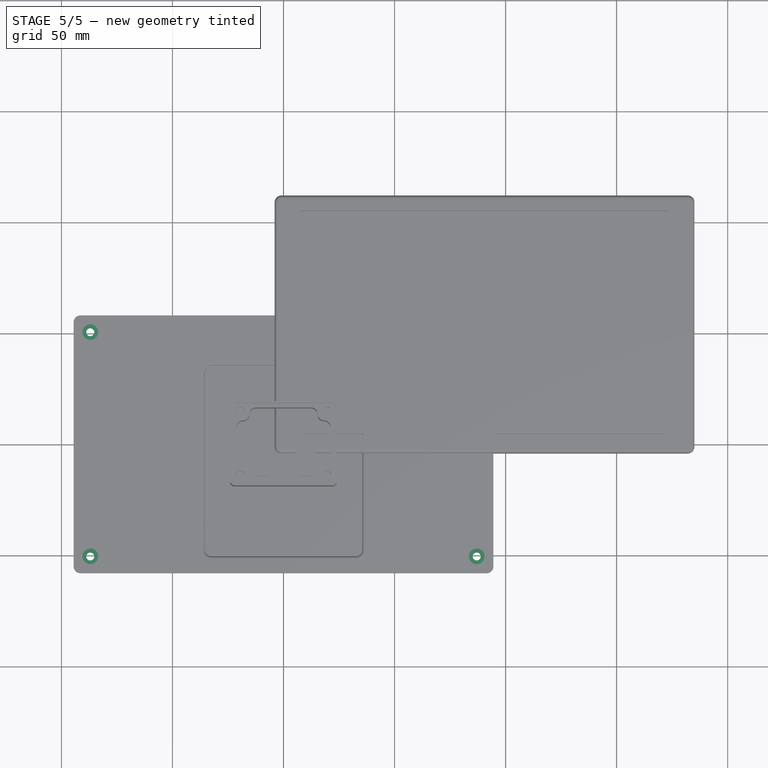
[diagram: stage 5 of 5 — top view after this stage's code; geometry added in this stage tinted green]
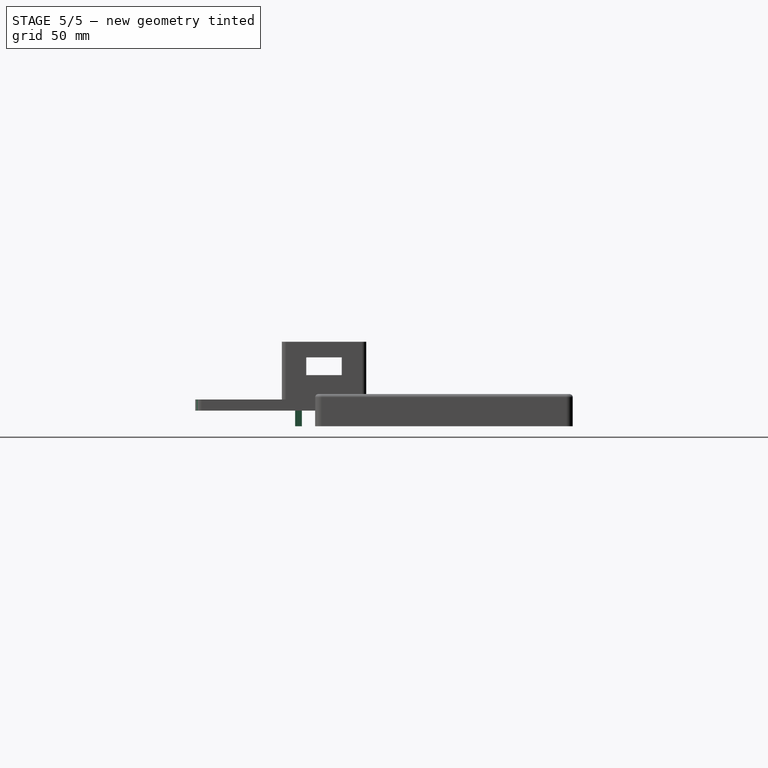
[diagram: stage 5 of 5 — right view after this stage's code; geometry added in this stage tinted green]
FEATURE [Sketcher::SketchObject] Sketch004
  ArcFitTolerance = 1e-06
  AttachmentSupport = -> [XY_Plane002]
  FullyConstrained = true
  MakeInternals = false
  MapMode = 5
  sketch-geometry (14):
    g0: LineSegment StartX=-22.5 StartY=15.5 StartZ=0 EndX=-22.5 EndY=-15.5 EndZ=0
    g1: LineSegment StartX=-20.5 StartY=-17.5 StartZ=0 EndX=20.5 EndY=-17.5 EndZ=0
    g2: LineSegment StartX=22.5 StartY=-15.5 StartZ=0 EndX=22.5 EndY=15.5 EndZ=0
    g3: LineSegment StartX=20.5 StartY=17.5 StartZ=0 EndX=-20.5 EndY=17.5 EndZ=0
    g4: ArcOfCircle CenterX=-20.5 CenterY=15.5 CenterZ=0 NormalX=0 NormalY=0 NormalZ=1 AngleXU=0 Radius=2 StartAngle=1.5708 EndAngle=3.14159
    g5: ArcOfCircle CenterX=-20.5 CenterY=-15.5 CenterZ=0 NormalX=0 NormalY=0 NormalZ=1 AngleXU=0 Radius=2 StartAngle=3.14159 EndAngle=4.71239
    g6: ArcOfCircle CenterX=20.5 CenterY=-15.5 CenterZ=0 NormalX=0 NormalY=0 NormalZ=1 AngleXU=0 Radius=2 StartAngle=4.71239 EndAngle=6.28319
    g7: ArcOfCircle CenterX=20.5 CenterY=15.5 CenterZ=0 NormalX=0 NormalY=0 NormalZ=1 AngleXU=0 Radius=2 StartAngle=0 EndAngle=1.5708
    g8: GeomPoint [constr] X=-22.5 Y=17.5 Z=0
    g9: GeomPoint [constr] X=22.5 Y=-17.5 Z=0
    g10: Circle CenterX=19.5 CenterY=-14.5 CenterZ=0 NormalX=0 NormalY=0 NormalZ=1 AngleXU=0 Radius=1.75
    g11: Circle CenterX=19.5 CenterY=14.5 CenterZ=0 NormalX=0 NormalY=0 NormalZ=1 AngleXU=0 Radius=1.75
    g12: Circle CenterX=-19.5 CenterY=-14.5 CenterZ=0 NormalX=0 NormalY=0 NormalZ=1 AngleXU=0 Radius=1.75
    g13: Circle CenterX=-19.5 CenterY=14.5 CenterZ=0 NormalX=0 NormalY=0 NormalZ=1 AngleXU=0 Radius=1.75
  constraints (31):
    c: Tangent(g0,g4) = -1.5708
    c: Tangent(g0,g5) = -1.5708
    c: Tangent(g1,g5) = -1.5708
    c: Tangent(g1,g6) = -1.5708
    c: Tangent(g2,g6) = -1.5708
    c: Tangent(g2,g7) = -1.5708
    c: Tangent(g3,g7) = -1.5708
    c: Tangent(g3,g4) = -1.5708
    c: Vertical(g0)
    c: Vertical(g2)
    c: Horizontal(g1)
    c: Horizontal(g3)
    c: Equal(g5,g6)
    c: PointOnObject(g8,g0)
    c: PointOnObject(g8,g3)
    c: PointOnObject(g9,g1)
    c: PointOnObject(g9,g2)
    c: Radius(g5) = 2
    c: DistanceX(g0,g2) = 45
    c: DistanceY(g1,g3) = 35
    c: Symmetric(g0,g2,g-2)
    c: Symmetric(g1,g3,g-1)
    c: Diameter(g10) = 3.5
    c: Diameter(g11) = 3.5
    c: Diameter(g12) = 3.5
    c: Diameter(g13) = 3.5
    c: Symmetric(g13,g11,g-2)
    c: Symmetric(g13,g12,g-1)
    c: Symmetric(g10,g11,g-1)
    c: DistanceX(g13,g11) = 39
    c: DistanceY(g10,g11) = 29
FEATURE [PartDesign::Pad] Pad002
  Direction = (0,0,1)
  Length = 2
  Length2 = 10
  Profile = -> Sketch004
  ReferenceAxis = -> Sketch004 [N_Axis]
  Refine = true
  Suppressed = false
  Type = 0
FEATURE [Sketcher::SketchObject] Sketch005
  ArcFitTolerance = 1e-06
  AttachmentSupport = -> [Pad002]
  FullyConstrained = true
  MakeInternals = false
  MapMode = 5
  Placement = pos=(0,0,0) rot=(1,0,0;3.14159rad)
  sketch-geometry (4):
    g0: LineSegment StartX=-15 StartY=13 StartZ=0 EndX=-15 EndY=-13 EndZ=0
    g1: LineSegment StartX=-15 StartY=-13 StartZ=0 EndX=15 EndY=-13 EndZ=0
    g2: LineSegment StartX=15 StartY=-13 StartZ=0 EndX=15 EndY=13 EndZ=0
    g3: LineSegment StartX=15 StartY=13 StartZ=0 EndX=-15 EndY=13 EndZ=0
  constraints (10):
    c: Coincident(g0,g1)
    c: Coincident(g1,g2)
    c: Coincident(g2,g3)
    c: Coincident(g3,g0)
    c: Vertical(g2)
    c: Horizontal(g1)
    c: Distance(g3) = 30
    c: Distance(g2) = 26
    c: Symmetric(g0,g2,g-2)
    c: Symmetric(g0,g0,g-1)
FEATURE [PartDesign::Pad] Pad003
  BaseFeature = -> Pad002
  Direction = (0,0,-1)
  Length = 7
  Length2 = 10
  Profile = -> Sketch005
  ReferenceAxis = -> Sketch005 [N_Axis]
  Refine = true
  Suppressed = false
  Type = 0
FEATURE [Sketcher::SketchObject] Sketch006
  ArcFitTolerance = 1e-06
  AttachmentSupport = -> [Pad003]
  FullyConstrained = true
  MakeInternals = false
  MapMode = 5
  Placement = pos=(15,0,0) rot=(0.57735,0.57735,0.57735;2.0944rad)
  sketch-geometry (4):
    g0: LineSegment StartX=-10 StartY=0 StartZ=0 EndX=10 EndY=-7e-16 EndZ=0
    g1: LineSegment StartX=10 StartY=-7e-16 StartZ=0 EndX=10 EndY=-7 EndZ=0
    g2: LineSegment StartX=10 StartY=-7 StartZ=0 EndX=-10 EndY=-7 EndZ=0
    g3: LineSegment StartX=-10 StartY=-7 StartZ=0 EndX=-10 EndY=0 EndZ=0
  constraints (11):
    c: PointOnObject(g0,g-1)
    c: Coincident(g2,g1)
    c: Horizontal(g2)
    c: Coincident(g3,g2)
    c: Vertical(g3)
    c: Vertical(g1)
    c: DistanceX(g2,g2) = 20
    c: Symmetric(g0,g0,g-1)
    c: Coincident(g1,g0)
    c: Coincident(g3,g0)
    c: DistanceY(g1,g1) = 7
FEATURE [PartDesign::Pocket] Pocket002
  BaseFeature = -> Pad003
  Direction = (-1,0,0)
  Length = 30
  Length2 = 5
  Profile = -> Sketch006
  ReferenceAxis = -> Sketch006 [N_Axis]
  Refine = true
  Suppressed = false
  Type = 0
FEATURE [Sketcher::SketchObject] Sketch018
  ArcFitTolerance = 1e-06
  FullyConstrained = true
  MakeInternals = false
  MapMode = 5
  Placement = pos=(0,0,0) rot=(1,0,0;3.14159rad)
  sketch-geometry (2):
    g0: Circle CenterX=0 CenterY=30 CenterZ=0 NormalX=0 NormalY=0 NormalZ=1 AngleXU=0 Radius=1.6
    g1: Circle CenterX=0 CenterY=-30 CenterZ=0 NormalX=0 NormalY=0 NormalZ=1 AngleXU=0 Radius=1.6
  constraints (5):
    c: Diameter(g0) = 3.2
    c: Diameter(g1) = 3.2
    c: Distance(g0,g1) = 60
    c: Symmetric(g0,g1,g-1)
    c: PointOnObject(g0,g-2)
FEATURE [Sketcher::SketchObject] Sketch019
  ArcFitTolerance = 1e-06
  AttachmentSupport = -> [Pad005]
  FullyConstrained = true
  MakeInternals = false
  MapMode = 5
  Placement = pos=(0,0,5) rot=(0,0,1;0rad)
  sketch-geometry (4):
    g0: Circle CenterX=-87 CenterY=50.5 CenterZ=0 NormalX=0 NormalY=0 NormalZ=1 AngleXU=0 Radius=1.8
    g1: Circle CenterX=87 CenterY=50.5 CenterZ=0 NormalX=0 NormalY=0 NormalZ=1 AngleXU=0 Radius=1.8
    g2: Circle CenterX=87 CenterY=-50.5 CenterZ=0 NormalX=0 NormalY=0 NormalZ=1 AngleXU=0 Radius=1.8
    g3: Circle CenterX=-87 CenterY=-50.5 CenterZ=0 NormalX=0 NormalY=0 NormalZ=1 AngleXU=0 Radius=1.8
  constraints (9):
    c: Diameter(g0) = 3.6
    c: Equal(g0,g1)
    c: Equal(g1,g2)
    c: Equal(g2,g3)
    c: DistanceX(g0,g1) = 174
    c: DistanceY(g2,g1) = 101
    c: Symmetric(g0,g1,g-2)
    c: Symmetric(g3,g2,g-2)
    c: Symmetric(g2,g1,g-1)
FEATURE [PartDesign::Fillet] Fillet  label="inner fillet"
  Base = -> Pad005 [Edge21]
  Radius = 1
  Refine = true
  SupportTransform = false
  Suppressed = false
  UseAllEdges = false
FEATURE [PartDesign::Fillet] Fillet001  label="round corners"
  Base = -> Fillet [Edge30,Edge34,Edge32,Edge29]
  BaseFeature = -> Fillet
  Radius = 3
  Refine = true
  SupportTransform = false
  Suppressed = false
  UseAllEdges = false
FEATURE [Part::Part2DObjectPython] ShapeString001  # Draft 2D object (typed FeaturePython)
  FontFile = <path>
  Fuse = false
  Justification = 6
  JustificationReference = 0
  KeepLeftMargin = false
  MakeFace = true
  ObliqueAngle = 0
  Placement = pos=(-9,43,5) rot=(0,1,0;0rad)
  ScaleToSize = true
  Size = 7.5
  String = TOP
  Tracking = 0
FEATURE [PartDesign::Pocket] Pocket021
  BaseFeature = -> Fillet001
  Direction = (0,0,-1)
  Length = 0.5
  Length2 = 5
  Profile = -> ShapeString001
  ReferenceAxis = -> ShapeString001 [N_Axis]
  Refine = true
  Suppressed = false
  Type = 0
FEATURE [PartDesign::Hole] Hole
  BaseFeature = -> Pocket021
  CustomThreadClearance = 0
  Depth = 25
  DepthType = 0
  Diameter = 3.6
  DrillForDepth = false
  DrillPoint = 1
  DrillPointAngle = 118
  HoleCutCountersinkAngle = 90
  HoleCutCustomValues = false
  HoleCutDepth = 1.5
  HoleCutDiameter = 7
  HoleCutType = 1
  ModelThread = false
  Profile = -> Sketch019
  Refine = true
  Suppressed = false
  Tapered = false
  TaperedAngle = 90
  ThreadClass = 0
  ThreadDepth = 25
  ThreadDepthType = 0
  ThreadDirection = 0
  ThreadFit = 0
  ThreadSize = 0
  ThreadType = 0
  Threaded = false
  UseCustomThreadClearance = false
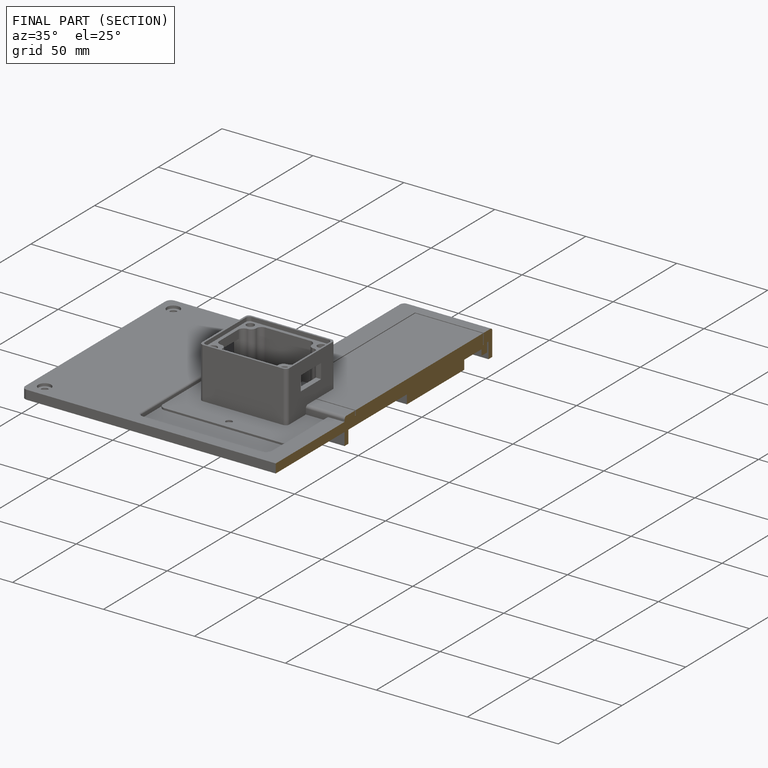
[diagram: finished part — half-section view (interior)]
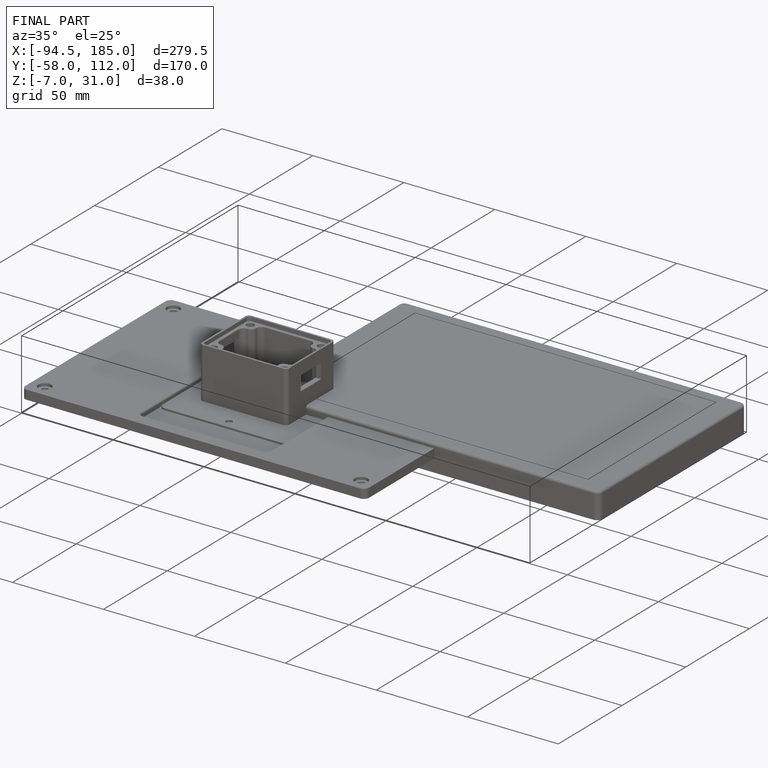
[diagram: finished part — iso view with bounding-box wireframe]
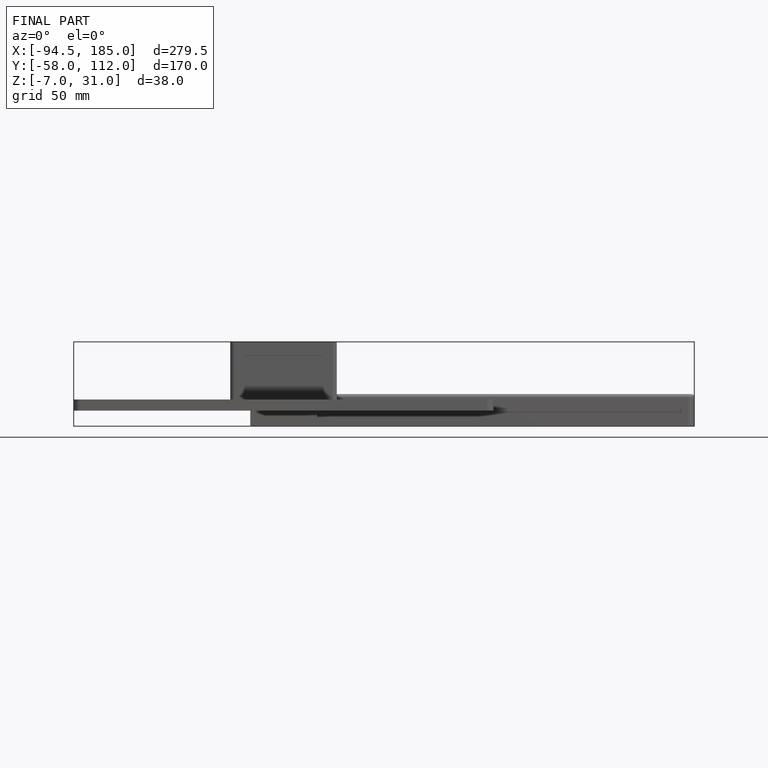
[diagram: finished part — front view with bounding-box wireframe]
